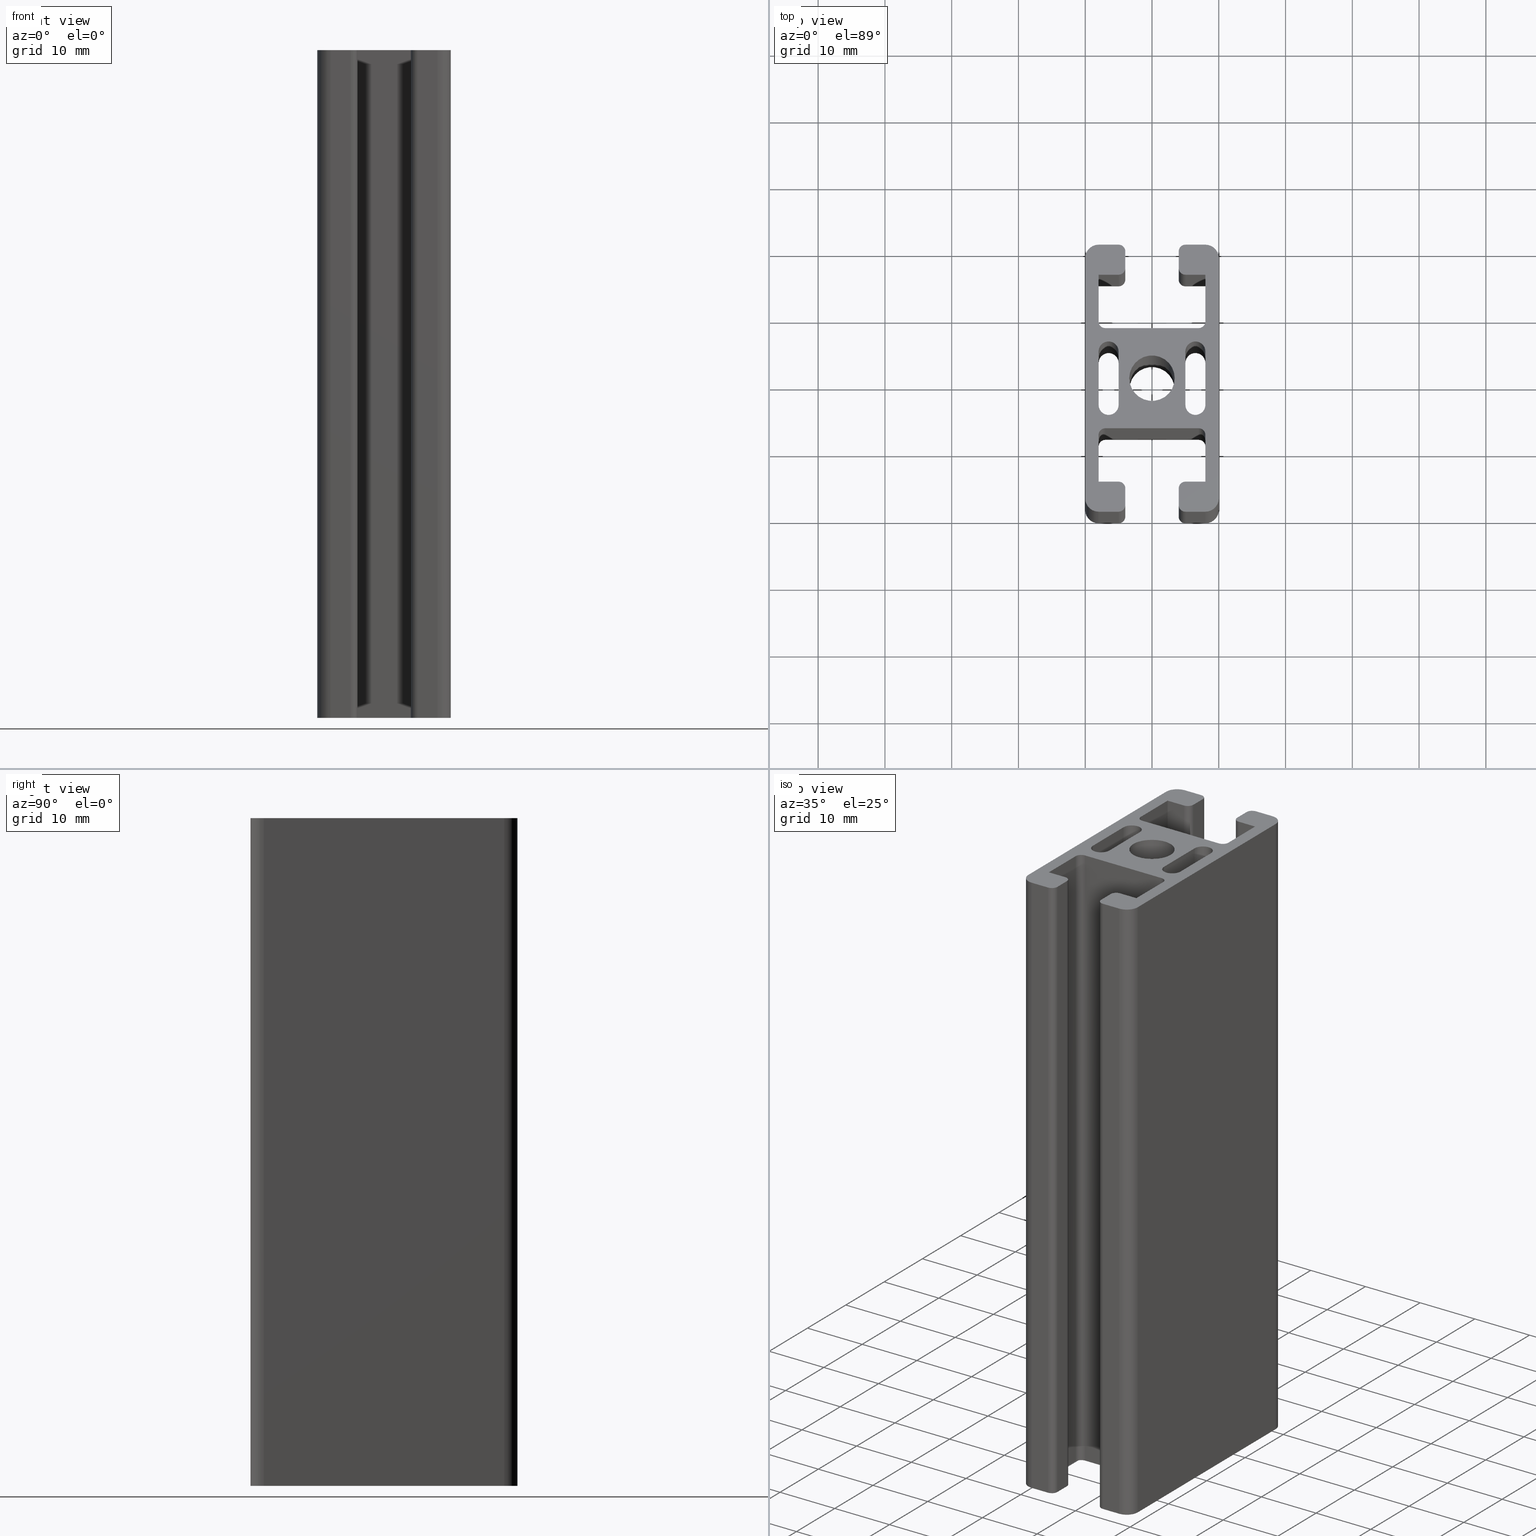
[diagram: canonical four-view strip — front | top / right | iso, engineering-drawing reading convention]
A machine part, canonical four-view strip (front | top / right | iso — engineering-drawing reading convention). The complete STEP part file that produces these views, byte-faithful:
ISO-10303-21;
HEADER;
/* Generated by software containing ST-Developer
 * from STEP Tools, Inc. (www.steptools.com) 
 */

FILE_DESCRIPTION(
/* description */ (''),
/* implementation_level */ '2;1');

FILE_NAME(
/* name */ 
'Q:\\Catalogo\\1_Profili Dierre\\Per Download Web\\Serie 40\\BPRDD0000
035.stp',
/* time_stamp */ '2017-07-12T11:37:06+02:00',
/* author */ ('fzagni'),
/* organization */ (''),
/* preprocessor_version */ 'ST-DEVELOPER v16.1',
/* originating_system */ 'Autodesk Inventor 2016',
/* authorisation */ '');

FILE_SCHEMA (('AUTOMOTIVE_DESIGN { 1 0 10303 214 3 1 1 }'));
ENDSEC;

DATA;
#10=MECHANICAL_DESIGN_GEOMETRIC_PRESENTATION_REPRESENTATION('',(#13),#1573);
#11=SHAPE_REPRESENTATION_RELATIONSHIP('SRR','None',#1582,#12);
#12=ADVANCED_BREP_SHAPE_REPRESENTATION('',(#14),#1572);
#13=STYLED_ITEM('',(#1591),#14);
#14=MANIFOLD_SOLID_BREP('Solido1',#935);
#15=LINE('',#1307,#107);
#16=LINE('',#1309,#108);
#17=LINE('',#1311,#109);
#18=LINE('',#1312,#110);
#19=LINE('',#1315,#111);
#20=LINE('',#1317,#112);
#21=LINE('',#1318,#113);
#22=LINE('',#1324,#114);
#23=LINE('',#1327,#115);
#24=LINE('',#1329,#116);
#25=LINE('',#1330,#117);
#26=LINE('',#1336,#118);
#27=LINE('',#1342,#119);
#28=LINE('',#1345,#120);
#29=LINE('',#1348,#121);
#30=LINE('',#1350,#122);
#31=LINE('',#1351,#123);
#32=LINE('',#1357,#124);
#33=LINE('',#1360,#125);
#34=LINE('',#1362,#126);
#35=LINE('',#1363,#127);
#36=LINE('',#1366,#128);
#37=LINE('',#1368,#129);
#38=LINE('',#1369,#130);
#39=LINE('',#1375,#131);
#40=LINE('',#1378,#132);
#41=LINE('',#1380,#133);
#42=LINE('',#1381,#134);
#43=LINE('',#1390,#135);
#44=LINE('',#1393,#136);
#45=LINE('',#1396,#137);
#46=LINE('',#1398,#138);
#47=LINE('',#1399,#139);
#48=LINE('',#1404,#140);
#49=LINE('',#1408,#141);
#50=LINE('',#1410,#142);
#51=LINE('',#1411,#143);
#52=LINE('',#1414,#144);
#53=LINE('',#1416,#145);
#54=LINE('',#1417,#146);
#55=LINE('',#1422,#147);
#56=LINE('',#1426,#148);
#57=LINE('',#1428,#149);
#58=LINE('',#1429,#150);
#59=LINE('',#1434,#151);
#60=LINE('',#1441,#152);
#61=LINE('',#1444,#153);
#62=LINE('',#1447,#154);
#63=LINE('',#1449,#155);
#64=LINE('',#1450,#156);
#65=LINE('',#1455,#157);
#66=LINE('',#1459,#158);
#67=LINE('',#1461,#159);
#68=LINE('',#1462,#160);
#69=LINE('',#1464,#161);
#70=LINE('',#1465,#162);
#71=LINE('',#1471,#163);
#72=LINE('',#1474,#164);
#73=LINE('',#1477,#165);
#74=LINE('',#1479,#166);
#75=LINE('',#1480,#167);
#76=LINE('',#1486,#168);
#77=LINE('',#1488,#169);
#78=LINE('',#1489,#170);
#79=LINE('',#1495,#171);
#80=LINE('',#1498,#172);
#81=LINE('',#1501,#173);
#82=LINE('',#1503,#174);
#83=LINE('',#1504,#175);
#84=LINE('',#1509,#176);
#85=LINE('',#1512,#177);
#86=LINE('',#1513,#178);
#87=LINE('',#1516,#179);
#88=LINE('',#1518,#180);
#89=LINE('',#1519,#181);
#90=LINE('',#1522,#182);
#91=LINE('',#1524,#183);
#92=LINE('',#1525,#184);
#93=LINE('',#1528,#185);
#94=LINE('',#1530,#186);
#95=LINE('',#1531,#187);
#96=LINE('',#1536,#188);
#97=LINE('',#1541,#189);
#98=LINE('',#1544,#190);
#99=LINE('',#1548,#191);
#100=LINE('',#1551,#192);
#101=LINE('',#1552,#193);
#102=LINE('',#1555,#194);
#103=LINE('',#1559,#195);
#104=LINE('',#1560,#196);
#105=LINE('',#1565,#197);
#106=LINE('',#1568,#198);
#107=VECTOR('',#1036,7.00000199595284);
#108=VECTOR('',#1037,100.);
#109=VECTOR('',#1038,7.00000199595284);
#110=VECTOR('',#1039,100.);
#111=VECTOR('',#1042,3.00000199595297);
#112=VECTOR('',#1043,3.00000199595297);
#113=VECTOR('',#1044,100.);
#114=VECTOR('',#1051,100.);
#115=VECTOR('',#1054,2.50000399190596);
#116=VECTOR('',#1055,2.50000399190596);
#117=VECTOR('',#1056,100.);
#118=VECTOR('',#1063,100.);
#119=VECTOR('',#1068,100.);
#120=VECTOR('',#1071,100.);
#121=VECTOR('',#1074,2.50000399190595);
#122=VECTOR('',#1075,2.50000399190595);
#123=VECTOR('',#1076,100.);
#124=VECTOR('',#1083,100.);
#125=VECTOR('',#1086,3.00000199595298);
#126=VECTOR('',#1087,3.00000199595298);
#127=VECTOR('',#1088,100.);
#128=VECTOR('',#1091,7.00000199595285);
#129=VECTOR('',#1092,7.00000199595285);
#130=VECTOR('',#1093,100.);
#131=VECTOR('',#1100,100.);
#132=VECTOR('',#1103,14.0000039919057);
#133=VECTOR('',#1104,14.0000039919057);
#134=VECTOR('',#1105,100.);
#135=VECTOR('',#1116,100.);
#136=VECTOR('',#1119,100.);
#137=VECTOR('',#1122,14.0000039919057);
#138=VECTOR('',#1123,100.);
#139=VECTOR('',#1124,14.0000039919057);
#140=VECTOR('',#1129,100.);
#141=VECTOR('',#1134,7.00000199595284);
#142=VECTOR('',#1135,100.);
#143=VECTOR('',#1136,7.00000199595284);
#144=VECTOR('',#1139,3.00000199595297);
#145=VECTOR('',#1140,100.);
#146=VECTOR('',#1141,3.00000199595297);
#147=VECTOR('',#1146,100.);
#148=VECTOR('',#1151,2.50000399190596);
#149=VECTOR('',#1152,100.);
#150=VECTOR('',#1153,2.50000399190596);
#151=VECTOR('',#1158,100.);
#152=VECTOR('',#1165,100.);
#153=VECTOR('',#1168,100.);
#154=VECTOR('',#1171,2.50000399190596);
#155=VECTOR('',#1172,100.);
#156=VECTOR('',#1173,2.50000399190596);
#157=VECTOR('',#1178,100.);
#158=VECTOR('',#1183,3.00000199595298);
#159=VECTOR('',#1184,100.);
#160=VECTOR('',#1185,3.00000199595298);
#161=VECTOR('',#1188,7.00000199595284);
#162=VECTOR('',#1189,7.00000199595284);
#163=VECTOR('',#1194,100.);
#164=VECTOR('',#1197,100.);
#165=VECTOR('',#1200,8.);
#166=VECTOR('',#1201,8.);
#167=VECTOR('',#1202,100.);
#168=VECTOR('',#1209,100.);
#169=VECTOR('',#1212,8.);
#170=VECTOR('',#1213,8.);
#171=VECTOR('',#1218,100.);
#172=VECTOR('',#1221,100.);
#173=VECTOR('',#1224,8.);
#174=VECTOR('',#1225,100.);
#175=VECTOR('',#1226,8.);
#176=VECTOR('',#1231,100.);
#177=VECTOR('',#1236,8.);
#178=VECTOR('',#1237,8.);
#179=VECTOR('',#1240,3.00000199595298);
#180=VECTOR('',#1241,100.);
#181=VECTOR('',#1242,3.00000199595298);
#182=VECTOR('',#1245,3.00000199595298);
#183=VECTOR('',#1246,100.);
#184=VECTOR('',#1247,3.00000199595298);
#185=VECTOR('',#1250,3.000001995953);
#186=VECTOR('',#1251,100.);
#187=VECTOR('',#1252,3.000001995953);
#188=VECTOR('',#1257,36.);
#189=VECTOR('',#1262,36.);
#190=VECTOR('',#1265,3.00000199595299);
#191=VECTOR('',#1270,100.);
#192=VECTOR('',#1273,100.);
#193=VECTOR('',#1274,3.00000199595299);
#194=VECTOR('',#1277,100.);
#195=VECTOR('',#1282,100.);
#196=VECTOR('',#1283,36.);
#197=VECTOR('',#1290,100.);
#198=VECTOR('',#1295,36.);
#199=PLANE('',#940);
#200=PLANE('',#941);
#201=PLANE('',#945);
#202=PLANE('',#952);
#203=PLANE('',#956);
#204=PLANE('',#957);
#205=PLANE('',#961);
#206=PLANE('',#968);
#207=PLANE('',#972);
#208=PLANE('',#973);
#209=PLANE('',#977);
#210=PLANE('',#984);
#211=PLANE('',#988);
#212=PLANE('',#989);
#213=PLANE('',#993);
#214=PLANE('',#997);
#215=PLANE('',#1001);
#216=PLANE('',#1005);
#217=PLANE('',#1006);
#218=PLANE('',#1007);
#219=PLANE('',#1008);
#220=PLANE('',#1009);
#221=PLANE('',#1016);
#222=PLANE('',#1019);
#223=PLANE('',#1024);
#224=PLANE('',#1025);
#225=FACE_BOUND('',#280,.T.);
#226=FACE_BOUND('',#319,.T.);
#227=FACE_BOUND('',#320,.T.);
#228=FACE_BOUND('',#321,.T.);
#229=FACE_BOUND('',#330,.T.);
#230=FACE_BOUND('',#331,.T.);
#231=FACE_BOUND('',#332,.T.);
#232=FACE_OUTER_BOUND('',#279,.T.);
#233=FACE_OUTER_BOUND('',#281,.T.);
#234=FACE_OUTER_BOUND('',#282,.T.);
#235=FACE_OUTER_BOUND('',#283,.T.);
#236=FACE_OUTER_BOUND('',#284,.T.);
#237=FACE_OUTER_BOUND('',#285,.T.);
#238=FACE_OUTER_BOUND('',#286,.T.);
#239=FACE_OUTER_BOUND('',#287,.T.);
#240=FACE_OUTER_BOUND('',#288,.T.);
#241=FACE_OUTER_BOUND('',#289,.T.);
#242=FACE_OUTER_BOUND('',#290,.T.);
#243=FACE_OUTER_BOUND('',#291,.T.);
#244=FACE_OUTER_BOUND('',#292,.T.);
#245=FACE_OUTER_BOUND('',#293,.T.);
#246=FACE_OUTER_BOUND('',#294,.T.);
#247=FACE_OUTER_BOUND('',#295,.T.);
#248=FACE_OUTER_BOUND('',#296,.T.);
#249=FACE_OUTER_BOUND('',#297,.T.);
#250=FACE_OUTER_BOUND('',#298,.T.);
#251=FACE_OUTER_BOUND('',#299,.T.);
#252=FACE_OUTER_BOUND('',#300,.T.);
#253=FACE_OUTER_BOUND('',#301,.T.);
#254=FACE_OUTER_BOUND('',#302,.T.);
#255=FACE_OUTER_BOUND('',#303,.T.);
#256=FACE_OUTER_BOUND('',#304,.T.);
#257=FACE_OUTER_BOUND('',#305,.T.);
#258=FACE_OUTER_BOUND('',#306,.T.);
#259=FACE_OUTER_BOUND('',#307,.T.);
#260=FACE_OUTER_BOUND('',#308,.T.);
#261=FACE_OUTER_BOUND('',#309,.T.);
#262=FACE_OUTER_BOUND('',#310,.T.);
#263=FACE_OUTER_BOUND('',#311,.T.);
#264=FACE_OUTER_BOUND('',#312,.T.);
#265=FACE_OUTER_BOUND('',#313,.T.);
#266=FACE_OUTER_BOUND('',#314,.T.);
#267=FACE_OUTER_BOUND('',#315,.T.);
#268=FACE_OUTER_BOUND('',#316,.T.);
#269=FACE_OUTER_BOUND('',#317,.T.);
#270=FACE_OUTER_BOUND('',#318,.T.);
#271=FACE_OUTER_BOUND('',#322,.T.);
#272=FACE_OUTER_BOUND('',#323,.T.);
#273=FACE_OUTER_BOUND('',#324,.T.);
#274=FACE_OUTER_BOUND('',#325,.T.);
#275=FACE_OUTER_BOUND('',#326,.T.);
#276=FACE_OUTER_BOUND('',#327,.T.);
#277=FACE_OUTER_BOUND('',#328,.T.);
#278=FACE_OUTER_BOUND('',#329,.T.);
#279=EDGE_LOOP('',(#599));
#280=EDGE_LOOP('',(#600));
#281=EDGE_LOOP('',(#601,#602,#603,#604));
#282=EDGE_LOOP('',(#605,#606,#607,#608));
#283=EDGE_LOOP('',(#609,#610,#611,#612));
#284=EDGE_LOOP('',(#613,#614,#615,#616));
#285=EDGE_LOOP('',(#617,#618,#619,#620));
#286=EDGE_LOOP('',(#621,#622,#623,#624));
#287=EDGE_LOOP('',(#625,#626,#627,#628));
#288=EDGE_LOOP('',(#629,#630,#631,#632));
#289=EDGE_LOOP('',(#633,#634,#635,#636));
#290=EDGE_LOOP('',(#637,#638,#639,#640));
#291=EDGE_LOOP('',(#641,#642,#643,#644));
#292=EDGE_LOOP('',(#645,#646,#647,#648));
#293=EDGE_LOOP('',(#649,#650,#651,#652));
#294=EDGE_LOOP('',(#653,#654,#655,#656));
#295=EDGE_LOOP('',(#657,#658,#659,#660));
#296=EDGE_LOOP('',(#661,#662,#663,#664));
#297=EDGE_LOOP('',(#665,#666,#667,#668));
#298=EDGE_LOOP('',(#669,#670,#671,#672));
#299=EDGE_LOOP('',(#673,#674,#675,#676));
#300=EDGE_LOOP('',(#677,#678,#679,#680));
#301=EDGE_LOOP('',(#681,#682,#683,#684));
#302=EDGE_LOOP('',(#685,#686,#687,#688));
#303=EDGE_LOOP('',(#689,#690,#691,#692));
#304=EDGE_LOOP('',(#693,#694,#695,#696));
#305=EDGE_LOOP('',(#697,#698,#699,#700));
#306=EDGE_LOOP('',(#701,#702,#703,#704));
#307=EDGE_LOOP('',(#705,#706,#707,#708));
#308=EDGE_LOOP('',(#709,#710,#711,#712));
#309=EDGE_LOOP('',(#713,#714,#715,#716));
#310=EDGE_LOOP('',(#717,#718,#719,#720));
#311=EDGE_LOOP('',(#721,#722,#723,#724));
#312=EDGE_LOOP('',(#725,#726,#727,#728));
#313=EDGE_LOOP('',(#729,#730,#731,#732));
#314=EDGE_LOOP('',(#733,#734,#735,#736));
#315=EDGE_LOOP('',(#737,#738,#739,#740));
#316=EDGE_LOOP('',(#741,#742,#743,#744));
#317=EDGE_LOOP('',(#745,#746,#747,#748));
#318=EDGE_LOOP('',(#749,#750,#751,#752,#753,#754,#755,#756,#757,#758,#759,
#760,#761,#762,#763,#764,#765,#766,#767,#768,#769,#770,#771,#772,#773,#774,
#775,#776,#777,#778,#779,#780,#781,#782,#783,#784));
#319=EDGE_LOOP('',(#785,#786,#787,#788));
#320=EDGE_LOOP('',(#789,#790,#791,#792));
#321=EDGE_LOOP('',(#793));
#322=EDGE_LOOP('',(#794,#795,#796,#797));
#323=EDGE_LOOP('',(#798,#799,#800,#801));
#324=EDGE_LOOP('',(#802,#803,#804,#805));
#325=EDGE_LOOP('',(#806,#807,#808,#809));
#326=EDGE_LOOP('',(#810,#811,#812,#813));
#327=EDGE_LOOP('',(#814,#815,#816,#817));
#328=EDGE_LOOP('',(#818,#819,#820,#821));
#329=EDGE_LOOP('',(#822,#823,#824,#825,#826,#827,#828,#829,#830,#831,#832,
#833,#834,#835,#836,#837,#838,#839,#840,#841,#842,#843,#844,#845,#846,#847,
#848,#849,#850,#851,#852,#853,#854,#855,#856,#857));
#330=EDGE_LOOP('',(#858));
#331=EDGE_LOOP('',(#859,#860,#861,#862));
#332=EDGE_LOOP('',(#863,#864,#865,#866));
#333=CIRCLE('',#938,3.4);
#334=CIRCLE('',#939,3.4);
#335=CIRCLE('',#943,0.999998004047022);
#336=CIRCLE('',#944,0.999998004047022);
#337=CIRCLE('',#947,0.99999800404702);
#338=CIRCLE('',#948,0.99999800404702);
#339=CIRCLE('',#950,0.999998004047022);
#340=CIRCLE('',#951,0.999998004047022);
#341=CIRCLE('',#954,0.999998004047022);
#342=CIRCLE('',#955,0.999998004047022);
#343=CIRCLE('',#959,0.999998004047153);
#344=CIRCLE('',#960,0.999998004047153);
#345=CIRCLE('',#963,0.99999800404715);
#346=CIRCLE('',#964,0.99999800404715);
#347=CIRCLE('',#966,0.999998004047153);
#348=CIRCLE('',#967,0.999998004047153);
#349=CIRCLE('',#970,0.999998004047152);
#350=CIRCLE('',#971,0.999998004047152);
#351=CIRCLE('',#975,0.999998004047026);
#352=CIRCLE('',#976,0.999998004047026);
#353=CIRCLE('',#979,0.999998004047015);
#354=CIRCLE('',#980,0.999998004047015);
#355=CIRCLE('',#982,0.999998004047022);
#356=CIRCLE('',#983,0.999998004047022);
#357=CIRCLE('',#986,0.999998004047022);
#358=CIRCLE('',#987,0.999998004047022);
#359=CIRCLE('',#991,1.5);
#360=CIRCLE('',#992,1.5);
#361=CIRCLE('',#995,1.5);
#362=CIRCLE('',#996,1.5);
#363=CIRCLE('',#999,1.5);
#364=CIRCLE('',#1000,1.5);
#365=CIRCLE('',#1003,1.5);
#366=CIRCLE('',#1004,1.5);
#367=CIRCLE('',#1010,2.);
#368=CIRCLE('',#1011,2.);
#369=CIRCLE('',#1012,2.);
#370=CIRCLE('',#1013,2.);
#371=CIRCLE('',#1015,2.);
#372=CIRCLE('',#1018,2.);
#373=CIRCLE('',#1021,2.);
#374=CIRCLE('',#1023,2.);
#375=VERTEX_POINT('',#1300);
#376=VERTEX_POINT('',#1302);
#377=VERTEX_POINT('',#1305);
#378=VERTEX_POINT('',#1306);
#379=VERTEX_POINT('',#1308);
#380=VERTEX_POINT('',#1310);
#381=VERTEX_POINT('',#1314);
#382=VERTEX_POINT('',#1316);
#383=VERTEX_POINT('',#1320);
#384=VERTEX_POINT('',#1322);
#385=VERTEX_POINT('',#1326);
#386=VERTEX_POINT('',#1328);
#387=VERTEX_POINT('',#1332);
#388=VERTEX_POINT('',#1334);
#389=VERTEX_POINT('',#1338);
#390=VERTEX_POINT('',#1339);
#391=VERTEX_POINT('',#1341);
#392=VERTEX_POINT('',#1343);
#393=VERTEX_POINT('',#1347);
#394=VERTEX_POINT('',#1349);
#395=VERTEX_POINT('',#1353);
#396=VERTEX_POINT('',#1355);
#397=VERTEX_POINT('',#1359);
#398=VERTEX_POINT('',#1361);
#399=VERTEX_POINT('',#1365);
#400=VERTEX_POINT('',#1367);
#401=VERTEX_POINT('',#1371);
#402=VERTEX_POINT('',#1373);
#403=VERTEX_POINT('',#1377);
#404=VERTEX_POINT('',#1379);
#405=VERTEX_POINT('',#1386);
#406=VERTEX_POINT('',#1387);
#407=VERTEX_POINT('',#1389);
#408=VERTEX_POINT('',#1391);
#409=VERTEX_POINT('',#1395);
#410=VERTEX_POINT('',#1397);
#411=VERTEX_POINT('',#1401);
#412=VERTEX_POINT('',#1403);
#413=VERTEX_POINT('',#1407);
#414=VERTEX_POINT('',#1409);
#415=VERTEX_POINT('',#1413);
#416=VERTEX_POINT('',#1415);
#417=VERTEX_POINT('',#1419);
#418=VERTEX_POINT('',#1421);
#419=VERTEX_POINT('',#1425);
#420=VERTEX_POINT('',#1427);
#421=VERTEX_POINT('',#1431);
#422=VERTEX_POINT('',#1433);
#423=VERTEX_POINT('',#1437);
#424=VERTEX_POINT('',#1438);
#425=VERTEX_POINT('',#1440);
#426=VERTEX_POINT('',#1442);
#427=VERTEX_POINT('',#1446);
#428=VERTEX_POINT('',#1448);
#429=VERTEX_POINT('',#1452);
#430=VERTEX_POINT('',#1454);
#431=VERTEX_POINT('',#1458);
#432=VERTEX_POINT('',#1460);
#433=VERTEX_POINT('',#1467);
#434=VERTEX_POINT('',#1468);
#435=VERTEX_POINT('',#1470);
#436=VERTEX_POINT('',#1472);
#437=VERTEX_POINT('',#1476);
#438=VERTEX_POINT('',#1478);
#439=VERTEX_POINT('',#1482);
#440=VERTEX_POINT('',#1484);
#441=VERTEX_POINT('',#1491);
#442=VERTEX_POINT('',#1492);
#443=VERTEX_POINT('',#1494);
#444=VERTEX_POINT('',#1496);
#445=VERTEX_POINT('',#1500);
#446=VERTEX_POINT('',#1502);
#447=VERTEX_POINT('',#1506);
#448=VERTEX_POINT('',#1508);
#449=VERTEX_POINT('',#1515);
#450=VERTEX_POINT('',#1517);
#451=VERTEX_POINT('',#1521);
#452=VERTEX_POINT('',#1523);
#453=VERTEX_POINT('',#1527);
#454=VERTEX_POINT('',#1529);
#455=VERTEX_POINT('',#1533);
#456=VERTEX_POINT('',#1535);
#457=VERTEX_POINT('',#1538);
#458=VERTEX_POINT('',#1540);
#459=VERTEX_POINT('',#1542);
#460=VERTEX_POINT('',#1546);
#461=VERTEX_POINT('',#1550);
#462=VERTEX_POINT('',#1554);
#463=VERTEX_POINT('',#1558);
#464=VERTEX_POINT('',#1564);
#465=EDGE_CURVE('',#375,#375,#333,.T.);
#466=EDGE_CURVE('',#376,#376,#334,.T.);
#467=EDGE_CURVE('',#377,#378,#15,.T.);
#468=EDGE_CURVE('',#379,#377,#16,.T.);
#469=EDGE_CURVE('',#380,#379,#17,.T.);
#470=EDGE_CURVE('',#380,#378,#18,.T.);
#471=EDGE_CURVE('',#378,#381,#19,.T.);
#472=EDGE_CURVE('',#382,#380,#20,.T.);
#473=EDGE_CURVE('',#382,#381,#21,.T.);
#474=EDGE_CURVE('',#381,#383,#335,.T.);
#475=EDGE_CURVE('',#384,#382,#336,.T.);
#476=EDGE_CURVE('',#384,#383,#22,.T.);
#477=EDGE_CURVE('',#383,#385,#23,.T.);
#478=EDGE_CURVE('',#386,#384,#24,.T.);
#479=EDGE_CURVE('',#386,#385,#25,.T.);
#480=EDGE_CURVE('',#385,#387,#337,.T.);
#481=EDGE_CURVE('',#388,#386,#338,.T.);
#482=EDGE_CURVE('',#387,#388,#26,.T.);
#483=EDGE_CURVE('',#389,#390,#339,.T.);
#484=EDGE_CURVE('',#389,#391,#27,.T.);
#485=EDGE_CURVE('',#392,#391,#340,.T.);
#486=EDGE_CURVE('',#392,#390,#28,.T.);
#487=EDGE_CURVE('',#390,#393,#29,.T.);
#488=EDGE_CURVE('',#394,#392,#30,.T.);
#489=EDGE_CURVE('',#394,#393,#31,.T.);
#490=EDGE_CURVE('',#393,#395,#341,.T.);
#491=EDGE_CURVE('',#396,#394,#342,.T.);
#492=EDGE_CURVE('',#396,#395,#32,.T.);
#493=EDGE_CURVE('',#395,#397,#33,.T.);
#494=EDGE_CURVE('',#398,#396,#34,.T.);
#495=EDGE_CURVE('',#398,#397,#35,.T.);
#496=EDGE_CURVE('',#397,#399,#36,.T.);
#497=EDGE_CURVE('',#400,#398,#37,.T.);
#498=EDGE_CURVE('',#400,#399,#38,.T.);
#499=EDGE_CURVE('',#399,#401,#343,.T.);
#500=EDGE_CURVE('',#402,#400,#344,.T.);
#501=EDGE_CURVE('',#402,#401,#39,.T.);
#502=EDGE_CURVE('',#401,#403,#40,.T.);
#503=EDGE_CURVE('',#404,#402,#41,.T.);
#504=EDGE_CURVE('',#404,#403,#42,.T.);
#505=EDGE_CURVE('',#403,#377,#345,.T.);
#506=EDGE_CURVE('',#379,#404,#346,.T.);
#507=EDGE_CURVE('',#405,#406,#347,.T.);
#508=EDGE_CURVE('',#407,#405,#43,.T.);
#509=EDGE_CURVE('',#408,#407,#348,.T.);
#510=EDGE_CURVE('',#408,#406,#44,.T.);
#511=EDGE_CURVE('',#409,#405,#45,.T.);
#512=EDGE_CURVE('',#410,#409,#46,.T.);
#513=EDGE_CURVE('',#407,#410,#47,.T.);
#514=EDGE_CURVE('',#411,#409,#349,.T.);
#515=EDGE_CURVE('',#412,#411,#48,.T.);
#516=EDGE_CURVE('',#410,#412,#350,.T.);
#517=EDGE_CURVE('',#413,#411,#49,.T.);
#518=EDGE_CURVE('',#414,#413,#50,.T.);
#519=EDGE_CURVE('',#412,#414,#51,.T.);
#520=EDGE_CURVE('',#415,#413,#52,.T.);
#521=EDGE_CURVE('',#416,#415,#53,.T.);
#522=EDGE_CURVE('',#414,#416,#54,.T.);
#523=EDGE_CURVE('',#417,#415,#351,.T.);
#524=EDGE_CURVE('',#418,#417,#55,.T.);
#525=EDGE_CURVE('',#416,#418,#352,.T.);
#526=EDGE_CURVE('',#419,#417,#56,.T.);
#527=EDGE_CURVE('',#420,#419,#57,.T.);
#528=EDGE_CURVE('',#418,#420,#58,.T.);
#529=EDGE_CURVE('',#421,#419,#353,.T.);
#530=EDGE_CURVE('',#421,#422,#59,.T.);
#531=EDGE_CURVE('',#420,#422,#354,.T.);
#532=EDGE_CURVE('',#423,#424,#355,.T.);
#533=EDGE_CURVE('',#425,#423,#60,.T.);
#534=EDGE_CURVE('',#426,#425,#356,.T.);
#535=EDGE_CURVE('',#424,#426,#61,.T.);
#536=EDGE_CURVE('',#427,#423,#62,.T.);
#537=EDGE_CURVE('',#428,#427,#63,.T.);
#538=EDGE_CURVE('',#425,#428,#64,.T.);
#539=EDGE_CURVE('',#429,#427,#357,.T.);
#540=EDGE_CURVE('',#430,#429,#65,.T.);
#541=EDGE_CURVE('',#428,#430,#358,.T.);
#542=EDGE_CURVE('',#431,#429,#66,.T.);
#543=EDGE_CURVE('',#432,#431,#67,.T.);
#544=EDGE_CURVE('',#430,#432,#68,.T.);
#545=EDGE_CURVE('',#406,#431,#69,.T.);
#546=EDGE_CURVE('',#432,#408,#70,.T.);
#547=EDGE_CURVE('',#433,#434,#359,.T.);
#548=EDGE_CURVE('',#435,#433,#71,.T.);
#549=EDGE_CURVE('',#436,#435,#360,.T.);
#550=EDGE_CURVE('',#436,#434,#72,.T.);
#551=EDGE_CURVE('',#434,#437,#73,.T.);
#552=EDGE_CURVE('',#438,#436,#74,.T.);
#553=EDGE_CURVE('',#438,#437,#75,.T.);
#554=EDGE_CURVE('',#437,#439,#361,.T.);
#555=EDGE_CURVE('',#440,#438,#362,.T.);
#556=EDGE_CURVE('',#440,#439,#76,.T.);
#557=EDGE_CURVE('',#439,#433,#77,.T.);
#558=EDGE_CURVE('',#435,#440,#78,.T.);
#559=EDGE_CURVE('',#441,#442,#363,.T.);
#560=EDGE_CURVE('',#443,#441,#79,.T.);
#561=EDGE_CURVE('',#444,#443,#364,.T.);
#562=EDGE_CURVE('',#444,#442,#80,.T.);
#563=EDGE_CURVE('',#445,#441,#81,.T.);
#564=EDGE_CURVE('',#446,#445,#82,.T.);
#565=EDGE_CURVE('',#443,#446,#83,.T.);
#566=EDGE_CURVE('',#447,#445,#365,.T.);
#567=EDGE_CURVE('',#448,#447,#84,.T.);
#568=EDGE_CURVE('',#446,#448,#366,.T.);
#569=EDGE_CURVE('',#442,#447,#85,.T.);
#570=EDGE_CURVE('',#448,#444,#86,.T.);
#571=EDGE_CURVE('',#449,#388,#87,.T.);
#572=EDGE_CURVE('',#449,#450,#88,.T.);
#573=EDGE_CURVE('',#450,#387,#89,.T.);
#574=EDGE_CURVE('',#451,#426,#90,.T.);
#575=EDGE_CURVE('',#451,#452,#91,.T.);
#576=EDGE_CURVE('',#452,#424,#92,.T.);
#577=EDGE_CURVE('',#421,#453,#93,.T.);
#578=EDGE_CURVE('',#454,#453,#94,.T.);
#579=EDGE_CURVE('',#422,#454,#95,.T.);
#580=EDGE_CURVE('',#455,#450,#367,.T.);
#581=EDGE_CURVE('',#456,#455,#96,.T.);
#582=EDGE_CURVE('',#453,#456,#368,.T.);
#583=EDGE_CURVE('',#457,#452,#369,.T.);
#584=EDGE_CURVE('',#458,#457,#97,.T.);
#585=EDGE_CURVE('',#459,#458,#370,.T.);
#586=EDGE_CURVE('',#389,#459,#98,.T.);
#587=EDGE_CURVE('',#460,#449,#371,.T.);
#588=EDGE_CURVE('',#460,#455,#99,.T.);
#589=EDGE_CURVE('',#461,#459,#100,.T.);
#590=EDGE_CURVE('',#391,#461,#101,.T.);
#591=EDGE_CURVE('',#462,#458,#102,.T.);
#592=EDGE_CURVE('',#461,#462,#372,.T.);
#593=EDGE_CURVE('',#463,#457,#103,.T.);
#594=EDGE_CURVE('',#462,#463,#104,.T.);
#595=EDGE_CURVE('',#463,#451,#373,.T.);
#596=EDGE_CURVE('',#464,#456,#105,.T.);
#597=EDGE_CURVE('',#454,#464,#374,.T.);
#598=EDGE_CURVE('',#464,#460,#106,.T.);
#599=ORIENTED_EDGE('',*,*,#465,.F.);
#600=ORIENTED_EDGE('',*,*,#466,.F.);
#601=ORIENTED_EDGE('',*,*,#467,.F.);
#602=ORIENTED_EDGE('',*,*,#468,.F.);
#603=ORIENTED_EDGE('',*,*,#469,.F.);
#604=ORIENTED_EDGE('',*,*,#470,.T.);
#605=ORIENTED_EDGE('',*,*,#471,.F.);
#606=ORIENTED_EDGE('',*,*,#470,.F.);
#607=ORIENTED_EDGE('',*,*,#472,.F.);
#608=ORIENTED_EDGE('',*,*,#473,.T.);
#609=ORIENTED_EDGE('',*,*,#474,.F.);
#610=ORIENTED_EDGE('',*,*,#473,.F.);
#611=ORIENTED_EDGE('',*,*,#475,.F.);
#612=ORIENTED_EDGE('',*,*,#476,.T.);
#613=ORIENTED_EDGE('',*,*,#477,.F.);
#614=ORIENTED_EDGE('',*,*,#476,.F.);
#615=ORIENTED_EDGE('',*,*,#478,.F.);
#616=ORIENTED_EDGE('',*,*,#479,.T.);
#617=ORIENTED_EDGE('',*,*,#480,.F.);
#618=ORIENTED_EDGE('',*,*,#479,.F.);
#619=ORIENTED_EDGE('',*,*,#481,.F.);
#620=ORIENTED_EDGE('',*,*,#482,.F.);
#621=ORIENTED_EDGE('',*,*,#483,.F.);
#622=ORIENTED_EDGE('',*,*,#484,.T.);
#623=ORIENTED_EDGE('',*,*,#485,.F.);
#624=ORIENTED_EDGE('',*,*,#486,.T.);
#625=ORIENTED_EDGE('',*,*,#487,.F.);
#626=ORIENTED_EDGE('',*,*,#486,.F.);
#627=ORIENTED_EDGE('',*,*,#488,.F.);
#628=ORIENTED_EDGE('',*,*,#489,.T.);
#629=ORIENTED_EDGE('',*,*,#490,.F.);
#630=ORIENTED_EDGE('',*,*,#489,.F.);
#631=ORIENTED_EDGE('',*,*,#491,.F.);
#632=ORIENTED_EDGE('',*,*,#492,.T.);
#633=ORIENTED_EDGE('',*,*,#493,.F.);
#634=ORIENTED_EDGE('',*,*,#492,.F.);
#635=ORIENTED_EDGE('',*,*,#494,.F.);
#636=ORIENTED_EDGE('',*,*,#495,.T.);
#637=ORIENTED_EDGE('',*,*,#496,.F.);
#638=ORIENTED_EDGE('',*,*,#495,.F.);
#639=ORIENTED_EDGE('',*,*,#497,.F.);
#640=ORIENTED_EDGE('',*,*,#498,.T.);
#641=ORIENTED_EDGE('',*,*,#499,.F.);
#642=ORIENTED_EDGE('',*,*,#498,.F.);
#643=ORIENTED_EDGE('',*,*,#500,.F.);
#644=ORIENTED_EDGE('',*,*,#501,.T.);
#645=ORIENTED_EDGE('',*,*,#502,.F.);
#646=ORIENTED_EDGE('',*,*,#501,.F.);
#647=ORIENTED_EDGE('',*,*,#503,.F.);
#648=ORIENTED_EDGE('',*,*,#504,.T.);
#649=ORIENTED_EDGE('',*,*,#505,.F.);
#650=ORIENTED_EDGE('',*,*,#504,.F.);
#651=ORIENTED_EDGE('',*,*,#506,.F.);
#652=ORIENTED_EDGE('',*,*,#468,.T.);
#653=ORIENTED_EDGE('',*,*,#507,.F.);
#654=ORIENTED_EDGE('',*,*,#508,.F.);
#655=ORIENTED_EDGE('',*,*,#509,.F.);
#656=ORIENTED_EDGE('',*,*,#510,.T.);
#657=ORIENTED_EDGE('',*,*,#511,.F.);
#658=ORIENTED_EDGE('',*,*,#512,.F.);
#659=ORIENTED_EDGE('',*,*,#513,.F.);
#660=ORIENTED_EDGE('',*,*,#508,.T.);
#661=ORIENTED_EDGE('',*,*,#514,.F.);
#662=ORIENTED_EDGE('',*,*,#515,.F.);
#663=ORIENTED_EDGE('',*,*,#516,.F.);
#664=ORIENTED_EDGE('',*,*,#512,.T.);
#665=ORIENTED_EDGE('',*,*,#517,.F.);
#666=ORIENTED_EDGE('',*,*,#518,.F.);
#667=ORIENTED_EDGE('',*,*,#519,.F.);
#668=ORIENTED_EDGE('',*,*,#515,.T.);
#669=ORIENTED_EDGE('',*,*,#520,.F.);
#670=ORIENTED_EDGE('',*,*,#521,.F.);
#671=ORIENTED_EDGE('',*,*,#522,.F.);
#672=ORIENTED_EDGE('',*,*,#518,.T.);
#673=ORIENTED_EDGE('',*,*,#523,.F.);
#674=ORIENTED_EDGE('',*,*,#524,.F.);
#675=ORIENTED_EDGE('',*,*,#525,.F.);
#676=ORIENTED_EDGE('',*,*,#521,.T.);
#677=ORIENTED_EDGE('',*,*,#526,.F.);
#678=ORIENTED_EDGE('',*,*,#527,.F.);
#679=ORIENTED_EDGE('',*,*,#528,.F.);
#680=ORIENTED_EDGE('',*,*,#524,.T.);
#681=ORIENTED_EDGE('',*,*,#529,.F.);
#682=ORIENTED_EDGE('',*,*,#530,.T.);
#683=ORIENTED_EDGE('',*,*,#531,.F.);
#684=ORIENTED_EDGE('',*,*,#527,.T.);
#685=ORIENTED_EDGE('',*,*,#532,.F.);
#686=ORIENTED_EDGE('',*,*,#533,.F.);
#687=ORIENTED_EDGE('',*,*,#534,.F.);
#688=ORIENTED_EDGE('',*,*,#535,.F.);
#689=ORIENTED_EDGE('',*,*,#536,.F.);
#690=ORIENTED_EDGE('',*,*,#537,.F.);
#691=ORIENTED_EDGE('',*,*,#538,.F.);
#692=ORIENTED_EDGE('',*,*,#533,.T.);
#693=ORIENTED_EDGE('',*,*,#539,.F.);
#694=ORIENTED_EDGE('',*,*,#540,.F.);
#695=ORIENTED_EDGE('',*,*,#541,.F.);
#696=ORIENTED_EDGE('',*,*,#537,.T.);
#697=ORIENTED_EDGE('',*,*,#542,.F.);
#698=ORIENTED_EDGE('',*,*,#543,.F.);
#699=ORIENTED_EDGE('',*,*,#544,.F.);
#700=ORIENTED_EDGE('',*,*,#540,.T.);
#701=ORIENTED_EDGE('',*,*,#545,.F.);
#702=ORIENTED_EDGE('',*,*,#510,.F.);
#703=ORIENTED_EDGE('',*,*,#546,.F.);
#704=ORIENTED_EDGE('',*,*,#543,.T.);
#705=ORIENTED_EDGE('',*,*,#547,.F.);
#706=ORIENTED_EDGE('',*,*,#548,.F.);
#707=ORIENTED_EDGE('',*,*,#549,.F.);
#708=ORIENTED_EDGE('',*,*,#550,.T.);
#709=ORIENTED_EDGE('',*,*,#551,.F.);
#710=ORIENTED_EDGE('',*,*,#550,.F.);
#711=ORIENTED_EDGE('',*,*,#552,.F.);
#712=ORIENTED_EDGE('',*,*,#553,.T.);
#713=ORIENTED_EDGE('',*,*,#554,.F.);
#714=ORIENTED_EDGE('',*,*,#553,.F.);
#715=ORIENTED_EDGE('',*,*,#555,.F.);
#716=ORIENTED_EDGE('',*,*,#556,.T.);
#717=ORIENTED_EDGE('',*,*,#557,.F.);
#718=ORIENTED_EDGE('',*,*,#556,.F.);
#719=ORIENTED_EDGE('',*,*,#558,.F.);
#720=ORIENTED_EDGE('',*,*,#548,.T.);
#721=ORIENTED_EDGE('',*,*,#559,.F.);
#722=ORIENTED_EDGE('',*,*,#560,.F.);
#723=ORIENTED_EDGE('',*,*,#561,.F.);
#724=ORIENTED_EDGE('',*,*,#562,.T.);
#725=ORIENTED_EDGE('',*,*,#563,.F.);
#726=ORIENTED_EDGE('',*,*,#564,.F.);
#727=ORIENTED_EDGE('',*,*,#565,.F.);
#728=ORIENTED_EDGE('',*,*,#560,.T.);
#729=ORIENTED_EDGE('',*,*,#566,.F.);
#730=ORIENTED_EDGE('',*,*,#567,.F.);
#731=ORIENTED_EDGE('',*,*,#568,.F.);
#732=ORIENTED_EDGE('',*,*,#564,.T.);
#733=ORIENTED_EDGE('',*,*,#569,.F.);
#734=ORIENTED_EDGE('',*,*,#562,.F.);
#735=ORIENTED_EDGE('',*,*,#570,.F.);
#736=ORIENTED_EDGE('',*,*,#567,.T.);
#737=ORIENTED_EDGE('',*,*,#482,.T.);
#738=ORIENTED_EDGE('',*,*,#571,.F.);
#739=ORIENTED_EDGE('',*,*,#572,.T.);
#740=ORIENTED_EDGE('',*,*,#573,.T.);
#741=ORIENTED_EDGE('',*,*,#535,.T.);
#742=ORIENTED_EDGE('',*,*,#574,.F.);
#743=ORIENTED_EDGE('',*,*,#575,.T.);
#744=ORIENTED_EDGE('',*,*,#576,.T.);
#745=ORIENTED_EDGE('',*,*,#530,.F.);
#746=ORIENTED_EDGE('',*,*,#577,.T.);
#747=ORIENTED_EDGE('',*,*,#578,.F.);
#748=ORIENTED_EDGE('',*,*,#579,.F.);
#749=ORIENTED_EDGE('',*,*,#483,.T.);
#750=ORIENTED_EDGE('',*,*,#487,.T.);
#751=ORIENTED_EDGE('',*,*,#490,.T.);
#752=ORIENTED_EDGE('',*,*,#493,.T.);
#753=ORIENTED_EDGE('',*,*,#496,.T.);
#754=ORIENTED_EDGE('',*,*,#499,.T.);
#755=ORIENTED_EDGE('',*,*,#502,.T.);
#756=ORIENTED_EDGE('',*,*,#505,.T.);
#757=ORIENTED_EDGE('',*,*,#467,.T.);
#758=ORIENTED_EDGE('',*,*,#471,.T.);
#759=ORIENTED_EDGE('',*,*,#474,.T.);
#760=ORIENTED_EDGE('',*,*,#477,.T.);
#761=ORIENTED_EDGE('',*,*,#480,.T.);
#762=ORIENTED_EDGE('',*,*,#573,.F.);
#763=ORIENTED_EDGE('',*,*,#580,.F.);
#764=ORIENTED_EDGE('',*,*,#581,.F.);
#765=ORIENTED_EDGE('',*,*,#582,.F.);
#766=ORIENTED_EDGE('',*,*,#577,.F.);
#767=ORIENTED_EDGE('',*,*,#529,.T.);
#768=ORIENTED_EDGE('',*,*,#526,.T.);
#769=ORIENTED_EDGE('',*,*,#523,.T.);
#770=ORIENTED_EDGE('',*,*,#520,.T.);
#771=ORIENTED_EDGE('',*,*,#517,.T.);
#772=ORIENTED_EDGE('',*,*,#514,.T.);
#773=ORIENTED_EDGE('',*,*,#511,.T.);
#774=ORIENTED_EDGE('',*,*,#507,.T.);
#775=ORIENTED_EDGE('',*,*,#545,.T.);
#776=ORIENTED_EDGE('',*,*,#542,.T.);
#777=ORIENTED_EDGE('',*,*,#539,.T.);
#778=ORIENTED_EDGE('',*,*,#536,.T.);
#779=ORIENTED_EDGE('',*,*,#532,.T.);
#780=ORIENTED_EDGE('',*,*,#576,.F.);
#781=ORIENTED_EDGE('',*,*,#583,.F.);
#782=ORIENTED_EDGE('',*,*,#584,.F.);
#783=ORIENTED_EDGE('',*,*,#585,.F.);
#784=ORIENTED_EDGE('',*,*,#586,.F.);
#785=ORIENTED_EDGE('',*,*,#559,.T.);
#786=ORIENTED_EDGE('',*,*,#569,.T.);
#787=ORIENTED_EDGE('',*,*,#566,.T.);
#788=ORIENTED_EDGE('',*,*,#563,.T.);
#789=ORIENTED_EDGE('',*,*,#547,.T.);
#790=ORIENTED_EDGE('',*,*,#551,.T.);
#791=ORIENTED_EDGE('',*,*,#554,.T.);
#792=ORIENTED_EDGE('',*,*,#557,.T.);
#793=ORIENTED_EDGE('',*,*,#465,.T.);
#794=ORIENTED_EDGE('',*,*,#580,.T.);
#795=ORIENTED_EDGE('',*,*,#572,.F.);
#796=ORIENTED_EDGE('',*,*,#587,.F.);
#797=ORIENTED_EDGE('',*,*,#588,.T.);
#798=ORIENTED_EDGE('',*,*,#484,.F.);
#799=ORIENTED_EDGE('',*,*,#586,.T.);
#800=ORIENTED_EDGE('',*,*,#589,.F.);
#801=ORIENTED_EDGE('',*,*,#590,.F.);
#802=ORIENTED_EDGE('',*,*,#585,.T.);
#803=ORIENTED_EDGE('',*,*,#591,.F.);
#804=ORIENTED_EDGE('',*,*,#592,.F.);
#805=ORIENTED_EDGE('',*,*,#589,.T.);
#806=ORIENTED_EDGE('',*,*,#584,.T.);
#807=ORIENTED_EDGE('',*,*,#593,.F.);
#808=ORIENTED_EDGE('',*,*,#594,.F.);
#809=ORIENTED_EDGE('',*,*,#591,.T.);
#810=ORIENTED_EDGE('',*,*,#583,.T.);
#811=ORIENTED_EDGE('',*,*,#575,.F.);
#812=ORIENTED_EDGE('',*,*,#595,.F.);
#813=ORIENTED_EDGE('',*,*,#593,.T.);
#814=ORIENTED_EDGE('',*,*,#582,.T.);
#815=ORIENTED_EDGE('',*,*,#596,.F.);
#816=ORIENTED_EDGE('',*,*,#597,.F.);
#817=ORIENTED_EDGE('',*,*,#578,.T.);
#818=ORIENTED_EDGE('',*,*,#581,.T.);
#819=ORIENTED_EDGE('',*,*,#588,.F.);
#820=ORIENTED_EDGE('',*,*,#598,.F.);
#821=ORIENTED_EDGE('',*,*,#596,.T.);
#822=ORIENTED_EDGE('',*,*,#485,.T.);
#823=ORIENTED_EDGE('',*,*,#590,.T.);
#824=ORIENTED_EDGE('',*,*,#592,.T.);
#825=ORIENTED_EDGE('',*,*,#594,.T.);
#826=ORIENTED_EDGE('',*,*,#595,.T.);
#827=ORIENTED_EDGE('',*,*,#574,.T.);
#828=ORIENTED_EDGE('',*,*,#534,.T.);
#829=ORIENTED_EDGE('',*,*,#538,.T.);
#830=ORIENTED_EDGE('',*,*,#541,.T.);
#831=ORIENTED_EDGE('',*,*,#544,.T.);
#832=ORIENTED_EDGE('',*,*,#546,.T.);
#833=ORIENTED_EDGE('',*,*,#509,.T.);
#834=ORIENTED_EDGE('',*,*,#513,.T.);
#835=ORIENTED_EDGE('',*,*,#516,.T.);
#836=ORIENTED_EDGE('',*,*,#519,.T.);
#837=ORIENTED_EDGE('',*,*,#522,.T.);
#838=ORIENTED_EDGE('',*,*,#525,.T.);
#839=ORIENTED_EDGE('',*,*,#528,.T.);
#840=ORIENTED_EDGE('',*,*,#531,.T.);
#841=ORIENTED_EDGE('',*,*,#579,.T.);
#842=ORIENTED_EDGE('',*,*,#597,.T.);
#843=ORIENTED_EDGE('',*,*,#598,.T.);
#844=ORIENTED_EDGE('',*,*,#587,.T.);
#845=ORIENTED_EDGE('',*,*,#571,.T.);
#846=ORIENTED_EDGE('',*,*,#481,.T.);
#847=ORIENTED_EDGE('',*,*,#478,.T.);
#848=ORIENTED_EDGE('',*,*,#475,.T.);
#849=ORIENTED_EDGE('',*,*,#472,.T.);
#850=ORIENTED_EDGE('',*,*,#469,.T.);
#851=ORIENTED_EDGE('',*,*,#506,.T.);
#852=ORIENTED_EDGE('',*,*,#503,.T.);
#853=ORIENTED_EDGE('',*,*,#500,.T.);
#854=ORIENTED_EDGE('',*,*,#497,.T.);
#855=ORIENTED_EDGE('',*,*,#494,.T.);
#856=ORIENTED_EDGE('',*,*,#491,.T.);
#857=ORIENTED_EDGE('',*,*,#488,.T.);
#858=ORIENTED_EDGE('',*,*,#466,.T.);
#859=ORIENTED_EDGE('',*,*,#549,.T.);
#860=ORIENTED_EDGE('',*,*,#558,.T.);
#861=ORIENTED_EDGE('',*,*,#555,.T.);
#862=ORIENTED_EDGE('',*,*,#552,.T.);
#863=ORIENTED_EDGE('',*,*,#561,.T.);
#864=ORIENTED_EDGE('',*,*,#565,.T.);
#865=ORIENTED_EDGE('',*,*,#568,.T.);
#866=ORIENTED_EDGE('',*,*,#570,.T.);
#867=CYLINDRICAL_SURFACE('',#937,3.4);
#868=CYLINDRICAL_SURFACE('',#942,0.999998004047022);
#869=CYLINDRICAL_SURFACE('',#946,0.99999800404702);
#870=CYLINDRICAL_SURFACE('',#949,0.999998004047022);
#871=CYLINDRICAL_SURFACE('',#953,0.999998004047022);
#872=CYLINDRICAL_SURFACE('',#958,0.999998004047153);
#873=CYLINDRICAL_SURFACE('',#962,0.99999800404715);
#874=CYLINDRICAL_SURFACE('',#965,0.999998004047153);
#875=CYLINDRICAL_SURFACE('',#969,0.999998004047152);
#876=CYLINDRICAL_SURFACE('',#974,0.999998004047026);
#877=CYLINDRICAL_SURFACE('',#978,0.999998004047015);
#878=CYLINDRICAL_SURFACE('',#981,0.999998004047022);
#879=CYLINDRICAL_SURFACE('',#985,0.999998004047022);
#880=CYLINDRICAL_SURFACE('',#990,1.5);
#881=CYLINDRICAL_SURFACE('',#994,1.5);
#882=CYLINDRICAL_SURFACE('',#998,1.5);
#883=CYLINDRICAL_SURFACE('',#1002,1.5);
#884=CYLINDRICAL_SURFACE('',#1014,2.);
#885=CYLINDRICAL_SURFACE('',#1017,2.);
#886=CYLINDRICAL_SURFACE('',#1020,2.);
#887=CYLINDRICAL_SURFACE('',#1022,2.);
#888=ADVANCED_FACE('',(#232,#225),#867,.F.);
#889=ADVANCED_FACE('',(#233),#199,.F.);
#890=ADVANCED_FACE('',(#234),#200,.F.);
#891=ADVANCED_FACE('',(#235),#868,.T.);
#892=ADVANCED_FACE('',(#236),#201,.F.);
#893=ADVANCED_FACE('',(#237),#869,.T.);
#894=ADVANCED_FACE('',(#238),#870,.T.);
#895=ADVANCED_FACE('',(#239),#202,.F.);
#896=ADVANCED_FACE('',(#240),#871,.T.);
#897=ADVANCED_FACE('',(#241),#203,.F.);
#898=ADVANCED_FACE('',(#242),#204,.F.);
#899=ADVANCED_FACE('',(#243),#872,.F.);
#900=ADVANCED_FACE('',(#244),#205,.F.);
#901=ADVANCED_FACE('',(#245),#873,.F.);
#902=ADVANCED_FACE('',(#246),#874,.F.);
#903=ADVANCED_FACE('',(#247),#206,.F.);
#904=ADVANCED_FACE('',(#248),#875,.F.);
#905=ADVANCED_FACE('',(#249),#207,.F.);
#906=ADVANCED_FACE('',(#250),#208,.F.);
#907=ADVANCED_FACE('',(#251),#876,.T.);
#908=ADVANCED_FACE('',(#252),#209,.F.);
#909=ADVANCED_FACE('',(#253),#877,.T.);
#910=ADVANCED_FACE('',(#254),#878,.T.);
#911=ADVANCED_FACE('',(#255),#210,.F.);
#912=ADVANCED_FACE('',(#256),#879,.T.);
#913=ADVANCED_FACE('',(#257),#211,.F.);
#914=ADVANCED_FACE('',(#258),#212,.F.);
#915=ADVANCED_FACE('',(#259),#880,.F.);
#916=ADVANCED_FACE('',(#260),#213,.F.);
#917=ADVANCED_FACE('',(#261),#881,.F.);
#918=ADVANCED_FACE('',(#262),#214,.F.);
#919=ADVANCED_FACE('',(#263),#882,.F.);
#920=ADVANCED_FACE('',(#264),#215,.F.);
#921=ADVANCED_FACE('',(#265),#883,.F.);
#922=ADVANCED_FACE('',(#266),#216,.F.);
#923=ADVANCED_FACE('',(#267),#217,.T.);
#924=ADVANCED_FACE('',(#268),#218,.T.);
#925=ADVANCED_FACE('',(#269),#219,.T.);
#926=ADVANCED_FACE('',(#270,#226,#227,#228),#220,.T.);
#927=ADVANCED_FACE('',(#271),#884,.T.);
#928=ADVANCED_FACE('',(#272),#221,.T.);
#929=ADVANCED_FACE('',(#273),#885,.T.);
#930=ADVANCED_FACE('',(#274),#222,.T.);
#931=ADVANCED_FACE('',(#275),#886,.T.);
#932=ADVANCED_FACE('',(#276),#887,.T.);
#933=ADVANCED_FACE('',(#277),#223,.T.);
#934=ADVANCED_FACE('',(#278,#229,#230,#231),#224,.F.);
#935=CLOSED_SHELL('',(#888,#889,#890,#891,#892,#893,#894,#895,#896,#897,
#898,#899,#900,#901,#902,#903,#904,#905,#906,#907,#908,#909,#910,#911,#912,
#913,#914,#915,#916,#917,#918,#919,#920,#921,#922,#923,#924,#925,#926,#927,
#928,#929,#930,#931,#932,#933,#934));
#936=AXIS2_PLACEMENT_3D('placement',#1298,#1026,#1027);
#937=AXIS2_PLACEMENT_3D('',#1299,#1028,#1029);
#938=AXIS2_PLACEMENT_3D('',#1301,#1030,#1031);
#939=AXIS2_PLACEMENT_3D('',#1303,#1032,#1033);
#940=AXIS2_PLACEMENT_3D('',#1304,#1034,#1035);
#941=AXIS2_PLACEMENT_3D('',#1313,#1040,#1041);
#942=AXIS2_PLACEMENT_3D('',#1319,#1045,#1046);
#943=AXIS2_PLACEMENT_3D('',#1321,#1047,#1048);
#944=AXIS2_PLACEMENT_3D('',#1323,#1049,#1050);
#945=AXIS2_PLACEMENT_3D('',#1325,#1052,#1053);
#946=AXIS2_PLACEMENT_3D('',#1331,#1057,#1058);
#947=AXIS2_PLACEMENT_3D('',#1333,#1059,#1060);
#948=AXIS2_PLACEMENT_3D('',#1335,#1061,#1062);
#949=AXIS2_PLACEMENT_3D('',#1337,#1064,#1065);
#950=AXIS2_PLACEMENT_3D('',#1340,#1066,#1067);
#951=AXIS2_PLACEMENT_3D('',#1344,#1069,#1070);
#952=AXIS2_PLACEMENT_3D('',#1346,#1072,#1073);
#953=AXIS2_PLACEMENT_3D('',#1352,#1077,#1078);
#954=AXIS2_PLACEMENT_3D('',#1354,#1079,#1080);
#955=AXIS2_PLACEMENT_3D('',#1356,#1081,#1082);
#956=AXIS2_PLACEMENT_3D('',#1358,#1084,#1085);
#957=AXIS2_PLACEMENT_3D('',#1364,#1089,#1090);
#958=AXIS2_PLACEMENT_3D('',#1370,#1094,#1095);
#959=AXIS2_PLACEMENT_3D('',#1372,#1096,#1097);
#960=AXIS2_PLACEMENT_3D('',#1374,#1098,#1099);
#961=AXIS2_PLACEMENT_3D('',#1376,#1101,#1102);
#962=AXIS2_PLACEMENT_3D('',#1382,#1106,#1107);
#963=AXIS2_PLACEMENT_3D('',#1383,#1108,#1109);
#964=AXIS2_PLACEMENT_3D('',#1384,#1110,#1111);
#965=AXIS2_PLACEMENT_3D('',#1385,#1112,#1113);
#966=AXIS2_PLACEMENT_3D('',#1388,#1114,#1115);
#967=AXIS2_PLACEMENT_3D('',#1392,#1117,#1118);
#968=AXIS2_PLACEMENT_3D('',#1394,#1120,#1121);
#969=AXIS2_PLACEMENT_3D('',#1400,#1125,#1126);
#970=AXIS2_PLACEMENT_3D('',#1402,#1127,#1128);
#971=AXIS2_PLACEMENT_3D('',#1405,#1130,#1131);
#972=AXIS2_PLACEMENT_3D('',#1406,#1132,#1133);
#973=AXIS2_PLACEMENT_3D('',#1412,#1137,#1138);
#974=AXIS2_PLACEMENT_3D('',#1418,#1142,#1143);
#975=AXIS2_PLACEMENT_3D('',#1420,#1144,#1145);
#976=AXIS2_PLACEMENT_3D('',#1423,#1147,#1148);
#977=AXIS2_PLACEMENT_3D('',#1424,#1149,#1150);
#978=AXIS2_PLACEMENT_3D('',#1430,#1154,#1155);
#979=AXIS2_PLACEMENT_3D('',#1432,#1156,#1157);
#980=AXIS2_PLACEMENT_3D('',#1435,#1159,#1160);
#981=AXIS2_PLACEMENT_3D('',#1436,#1161,#1162);
#982=AXIS2_PLACEMENT_3D('',#1439,#1163,#1164);
#983=AXIS2_PLACEMENT_3D('',#1443,#1166,#1167);
#984=AXIS2_PLACEMENT_3D('',#1445,#1169,#1170);
#985=AXIS2_PLACEMENT_3D('',#1451,#1174,#1175);
#986=AXIS2_PLACEMENT_3D('',#1453,#1176,#1177);
#987=AXIS2_PLACEMENT_3D('',#1456,#1179,#1180);
#988=AXIS2_PLACEMENT_3D('',#1457,#1181,#1182);
#989=AXIS2_PLACEMENT_3D('',#1463,#1186,#1187);
#990=AXIS2_PLACEMENT_3D('',#1466,#1190,#1191);
#991=AXIS2_PLACEMENT_3D('',#1469,#1192,#1193);
#992=AXIS2_PLACEMENT_3D('',#1473,#1195,#1196);
#993=AXIS2_PLACEMENT_3D('',#1475,#1198,#1199);
#994=AXIS2_PLACEMENT_3D('',#1481,#1203,#1204);
#995=AXIS2_PLACEMENT_3D('',#1483,#1205,#1206);
#996=AXIS2_PLACEMENT_3D('',#1485,#1207,#1208);
#997=AXIS2_PLACEMENT_3D('',#1487,#1210,#1211);
#998=AXIS2_PLACEMENT_3D('',#1490,#1214,#1215);
#999=AXIS2_PLACEMENT_3D('',#1493,#1216,#1217);
#1000=AXIS2_PLACEMENT_3D('',#1497,#1219,#1220);
#1001=AXIS2_PLACEMENT_3D('',#1499,#1222,#1223);
#1002=AXIS2_PLACEMENT_3D('',#1505,#1227,#1228);
#1003=AXIS2_PLACEMENT_3D('',#1507,#1229,#1230);
#1004=AXIS2_PLACEMENT_3D('',#1510,#1232,#1233);
#1005=AXIS2_PLACEMENT_3D('',#1511,#1234,#1235);
#1006=AXIS2_PLACEMENT_3D('',#1514,#1238,#1239);
#1007=AXIS2_PLACEMENT_3D('',#1520,#1243,#1244);
#1008=AXIS2_PLACEMENT_3D('',#1526,#1248,#1249);
#1009=AXIS2_PLACEMENT_3D('',#1532,#1253,#1254);
#1010=AXIS2_PLACEMENT_3D('',#1534,#1255,#1256);
#1011=AXIS2_PLACEMENT_3D('',#1537,#1258,#1259);
#1012=AXIS2_PLACEMENT_3D('',#1539,#1260,#1261);
#1013=AXIS2_PLACEMENT_3D('',#1543,#1263,#1264);
#1014=AXIS2_PLACEMENT_3D('',#1545,#1266,#1267);
#1015=AXIS2_PLACEMENT_3D('',#1547,#1268,#1269);
#1016=AXIS2_PLACEMENT_3D('',#1549,#1271,#1272);
#1017=AXIS2_PLACEMENT_3D('',#1553,#1275,#1276);
#1018=AXIS2_PLACEMENT_3D('',#1556,#1278,#1279);
#1019=AXIS2_PLACEMENT_3D('',#1557,#1280,#1281);
#1020=AXIS2_PLACEMENT_3D('',#1561,#1284,#1285);
#1021=AXIS2_PLACEMENT_3D('',#1562,#1286,#1287);
#1022=AXIS2_PLACEMENT_3D('',#1563,#1288,#1289);
#1023=AXIS2_PLACEMENT_3D('',#1566,#1291,#1292);
#1024=AXIS2_PLACEMENT_3D('',#1567,#1293,#1294);
#1025=AXIS2_PLACEMENT_3D('',#1569,#1296,#1297);
#1026=DIRECTION('axis',(0.,0.,1.));
#1027=DIRECTION('refdir',(1.,0.,0.));
#1028=DIRECTION('center_axis',(0.,0.,1.));
#1029=DIRECTION('ref_axis',(-1.,0.,0.));
#1030=DIRECTION('center_axis',(0.,0.,-1.));
#1031=DIRECTION('ref_axis',(-1.,0.,0.));
#1032=DIRECTION('center_axis',(0.,0.,1.));
#1033=DIRECTION('ref_axis',(-1.,0.,0.));
#1034=DIRECTION('center_axis',(1.,0.,0.));
#1035=DIRECTION('ref_axis',(0.,0.,-1.));
#1036=DIRECTION('',(0.,-1.,0.));
#1037=DIRECTION('',(0.,0.,1.));
#1038=DIRECTION('',(0.,1.,0.));
#1039=DIRECTION('',(0.,0.,1.));
#1040=DIRECTION('center_axis',(0.,-1.,0.));
#1041=DIRECTION('ref_axis',(0.,0.,-1.));
#1042=DIRECTION('',(-1.,0.,0.));
#1043=DIRECTION('',(1.,0.,0.));
#1044=DIRECTION('',(0.,0.,1.));
#1045=DIRECTION('center_axis',(0.,0.,1.));
#1046=DIRECTION('ref_axis',(0.,-1.,0.));
#1047=DIRECTION('center_axis',(0.,0.,1.));
#1048=DIRECTION('ref_axis',(0.,-1.,0.));
#1049=DIRECTION('center_axis',(0.,0.,-1.));
#1050=DIRECTION('ref_axis',(0.,-1.,0.));
#1051=DIRECTION('',(0.,0.,1.));
#1052=DIRECTION('center_axis',(1.,-8.881770014925E-16,0.));
#1053=DIRECTION('ref_axis',(0.,0.,-1.));
#1054=DIRECTION('',(-8.881770014925E-16,-1.,0.));
#1055=DIRECTION('',(8.881770014925E-16,1.,0.));
#1056=DIRECTION('',(0.,0.,1.));
#1057=DIRECTION('center_axis',(0.,0.,1.));
#1058=DIRECTION('ref_axis',(1.,0.,0.));
#1059=DIRECTION('center_axis',(0.,0.,1.));
#1060=DIRECTION('ref_axis',(1.,0.,0.));
#1061=DIRECTION('center_axis',(0.,0.,-1.));
#1062=DIRECTION('ref_axis',(1.,0.,0.));
#1063=DIRECTION('',(0.,0.,-1.));
#1064=DIRECTION('center_axis',(0.,0.,1.));
#1065=DIRECTION('ref_axis',(-4.44090096233013E-15,1.,0.));
#1066=DIRECTION('center_axis',(0.,0.,1.));
#1067=DIRECTION('ref_axis',(-4.44090096233013E-15,1.,0.));
#1068=DIRECTION('',(0.,0.,-1.));
#1069=DIRECTION('center_axis',(0.,0.,-1.));
#1070=DIRECTION('ref_axis',(-4.44090096233013E-15,1.,0.));
#1071=DIRECTION('',(0.,0.,1.));
#1072=DIRECTION('center_axis',(-1.,8.88177001492502E-16,0.));
#1073=DIRECTION('ref_axis',(0.,0.,1.));
#1074=DIRECTION('',(8.88177001492502E-16,1.,0.));
#1075=DIRECTION('',(-8.88177001492502E-16,-1.,0.));
#1076=DIRECTION('',(0.,0.,1.));
#1077=DIRECTION('center_axis',(0.,0.,1.));
#1078=DIRECTION('ref_axis',(-1.,0.,0.));
#1079=DIRECTION('center_axis',(0.,0.,1.));
#1080=DIRECTION('ref_axis',(-1.,0.,0.));
#1081=DIRECTION('center_axis',(0.,0.,-1.));
#1082=DIRECTION('ref_axis',(-1.,0.,0.));
#1083=DIRECTION('',(0.,0.,1.));
#1084=DIRECTION('center_axis',(-7.40148190649775E-16,-1.,0.));
#1085=DIRECTION('ref_axis',(0.,0.,-1.));
#1086=DIRECTION('',(-1.,7.40148190649775E-16,0.));
#1087=DIRECTION('',(1.,-7.40148190649775E-16,0.));
#1088=DIRECTION('',(0.,0.,1.));
#1089=DIRECTION('center_axis',(-1.,0.,0.));
#1090=DIRECTION('ref_axis',(0.,0.,1.));
#1091=DIRECTION('',(0.,1.,0.));
#1092=DIRECTION('',(0.,-1.,0.));
#1093=DIRECTION('',(0.,0.,1.));
#1094=DIRECTION('center_axis',(0.,0.,1.));
#1095=DIRECTION('ref_axis',(0.,1.,0.));
#1096=DIRECTION('center_axis',(0.,0.,-1.));
#1097=DIRECTION('ref_axis',(0.,1.,0.));
#1098=DIRECTION('center_axis',(0.,0.,1.));
#1099=DIRECTION('ref_axis',(0.,1.,0.));
#1100=DIRECTION('',(0.,0.,1.));
#1101=DIRECTION('center_axis',(0.,1.,0.));
#1102=DIRECTION('ref_axis',(0.,0.,1.));
#1103=DIRECTION('',(1.,0.,0.));
#1104=DIRECTION('',(-1.,0.,0.));
#1105=DIRECTION('',(0.,0.,1.));
#1106=DIRECTION('center_axis',(0.,0.,1.));
#1107=DIRECTION('ref_axis',(1.,-2.22045048116478E-15,0.));
#1108=DIRECTION('center_axis',(0.,0.,-1.));
#1109=DIRECTION('ref_axis',(1.,-2.22045048116478E-15,0.));
#1110=DIRECTION('center_axis',(0.,0.,1.));
#1111=DIRECTION('ref_axis',(1.,-2.22045048116478E-15,0.));
#1112=DIRECTION('center_axis',(0.,0.,1.));
#1113=DIRECTION('ref_axis',(-1.,0.,0.));
#1114=DIRECTION('center_axis',(0.,0.,-1.));
#1115=DIRECTION('ref_axis',(-1.,0.,0.));
#1116=DIRECTION('',(0.,0.,1.));
#1117=DIRECTION('center_axis',(0.,0.,1.));
#1118=DIRECTION('ref_axis',(-1.,0.,0.));
#1119=DIRECTION('',(0.,0.,1.));
#1120=DIRECTION('center_axis',(0.,-1.,0.));
#1121=DIRECTION('ref_axis',(0.,0.,-1.));
#1122=DIRECTION('',(-1.,0.,0.));
#1123=DIRECTION('',(0.,0.,1.));
#1124=DIRECTION('',(1.,0.,0.));
#1125=DIRECTION('center_axis',(0.,0.,1.));
#1126=DIRECTION('ref_axis',(1.11022524058239E-15,-1.,0.));
#1127=DIRECTION('center_axis',(0.,0.,-1.));
#1128=DIRECTION('ref_axis',(1.11022524058239E-15,-1.,0.));
#1129=DIRECTION('',(0.,0.,1.));
#1130=DIRECTION('center_axis',(0.,0.,1.));
#1131=DIRECTION('ref_axis',(1.11022524058239E-15,-1.,0.));
#1132=DIRECTION('center_axis',(1.,0.,0.));
#1133=DIRECTION('ref_axis',(0.,0.,-1.));
#1134=DIRECTION('',(0.,-1.,0.));
#1135=DIRECTION('',(0.,0.,1.));
#1136=DIRECTION('',(0.,1.,0.));
#1137=DIRECTION('center_axis',(1.48029638129955E-15,1.,0.));
#1138=DIRECTION('ref_axis',(0.,0.,1.));
#1139=DIRECTION('',(1.,-1.48029638129955E-15,0.));
#1140=DIRECTION('',(0.,0.,1.));
#1141=DIRECTION('',(-1.,1.48029638129955E-15,0.));
#1142=DIRECTION('center_axis',(0.,0.,1.));
#1143=DIRECTION('ref_axis',(1.,0.,0.));
#1144=DIRECTION('center_axis',(0.,0.,1.));
#1145=DIRECTION('ref_axis',(1.,0.,0.));
#1146=DIRECTION('',(0.,0.,1.));
#1147=DIRECTION('center_axis',(0.,0.,-1.));
#1148=DIRECTION('ref_axis',(1.,0.,0.));
#1149=DIRECTION('center_axis',(1.,-1.776354002985E-15,0.));
#1150=DIRECTION('ref_axis',(0.,0.,-1.));
#1151=DIRECTION('',(-1.776354002985E-15,-1.,0.));
#1152=DIRECTION('',(0.,0.,1.));
#1153=DIRECTION('',(1.776354002985E-15,1.,0.));
#1154=DIRECTION('center_axis',(0.,0.,1.));
#1155=DIRECTION('ref_axis',(8.88180192466027E-15,-1.,0.));
#1156=DIRECTION('center_axis',(0.,0.,1.));
#1157=DIRECTION('ref_axis',(8.88180192466027E-15,-1.,0.));
#1158=DIRECTION('',(0.,0.,-1.));
#1159=DIRECTION('center_axis',(0.,0.,-1.));
#1160=DIRECTION('ref_axis',(8.88180192466027E-15,-1.,0.));
#1161=DIRECTION('center_axis',(0.,0.,1.));
#1162=DIRECTION('ref_axis',(-1.,0.,0.));
#1163=DIRECTION('center_axis',(0.,0.,1.));
#1164=DIRECTION('ref_axis',(-1.,0.,0.));
#1165=DIRECTION('',(0.,0.,1.));
#1166=DIRECTION('center_axis',(0.,0.,-1.));
#1167=DIRECTION('ref_axis',(-1.,0.,0.));
#1168=DIRECTION('',(0.,0.,-1.));
#1169=DIRECTION('center_axis',(-1.,-8.881770014925E-16,0.));
#1170=DIRECTION('ref_axis',(0.,0.,1.));
#1171=DIRECTION('',(-8.881770014925E-16,1.,0.));
#1172=DIRECTION('',(0.,0.,1.));
#1173=DIRECTION('',(8.881770014925E-16,-1.,0.));
#1174=DIRECTION('center_axis',(0.,0.,1.));
#1175=DIRECTION('ref_axis',(4.44090096233013E-15,1.,0.));
#1176=DIRECTION('center_axis',(0.,0.,1.));
#1177=DIRECTION('ref_axis',(4.44090096233013E-15,1.,0.));
#1178=DIRECTION('',(0.,0.,1.));
#1179=DIRECTION('center_axis',(0.,0.,-1.));
#1180=DIRECTION('ref_axis',(4.44090096233013E-15,1.,0.));
#1181=DIRECTION('center_axis',(-2.9605927625991E-15,1.,0.));
#1182=DIRECTION('ref_axis',(0.,0.,1.));
#1183=DIRECTION('',(1.,2.9605927625991E-15,0.));
#1184=DIRECTION('',(0.,0.,1.));
#1185=DIRECTION('',(-1.,-2.9605927625991E-15,0.));
#1186=DIRECTION('center_axis',(-1.,0.,0.));
#1187=DIRECTION('ref_axis',(0.,0.,1.));
#1188=DIRECTION('',(0.,1.,0.));
#1189=DIRECTION('',(0.,-1.,0.));
#1190=DIRECTION('center_axis',(0.,0.,1.));
#1191=DIRECTION('ref_axis',(1.,0.,0.));
#1192=DIRECTION('center_axis',(0.,0.,-1.));
#1193=DIRECTION('ref_axis',(1.,0.,0.));
#1194=DIRECTION('',(0.,0.,1.));
#1195=DIRECTION('center_axis',(0.,0.,1.));
#1196=DIRECTION('ref_axis',(1.,0.,0.));
#1197=DIRECTION('',(0.,0.,1.));
#1198=DIRECTION('center_axis',(1.,0.,0.));
#1199=DIRECTION('ref_axis',(0.,0.,-1.));
#1200=DIRECTION('',(0.,-1.,0.));
#1201=DIRECTION('',(0.,1.,0.));
#1202=DIRECTION('',(0.,0.,1.));
#1203=DIRECTION('center_axis',(0.,0.,1.));
#1204=DIRECTION('ref_axis',(-1.,0.,0.));
#1205=DIRECTION('center_axis',(0.,0.,-1.));
#1206=DIRECTION('ref_axis',(-1.,0.,0.));
#1207=DIRECTION('center_axis',(0.,0.,1.));
#1208=DIRECTION('ref_axis',(-1.,0.,0.));
#1209=DIRECTION('',(0.,0.,1.));
#1210=DIRECTION('center_axis',(-1.,-2.77555756156289E-16,0.));
#1211=DIRECTION('ref_axis',(0.,0.,1.));
#1212=DIRECTION('',(-2.77555756156289E-16,1.,0.));
#1213=DIRECTION('',(2.77555756156289E-16,-1.,0.));
#1214=DIRECTION('center_axis',(0.,0.,1.));
#1215=DIRECTION('ref_axis',(1.,0.,0.));
#1216=DIRECTION('center_axis',(0.,0.,-1.));
#1217=DIRECTION('ref_axis',(1.,0.,0.));
#1218=DIRECTION('',(0.,0.,1.));
#1219=DIRECTION('center_axis',(0.,0.,1.));
#1220=DIRECTION('ref_axis',(1.,0.,0.));
#1221=DIRECTION('',(0.,0.,1.));
#1222=DIRECTION('center_axis',(-1.,-1.11022302462516E-15,0.));
#1223=DIRECTION('ref_axis',(0.,0.,1.));
#1224=DIRECTION('',(-1.11022302462516E-15,1.,0.));
#1225=DIRECTION('',(0.,0.,1.));
#1226=DIRECTION('',(1.11022302462516E-15,-1.,0.));
#1227=DIRECTION('center_axis',(0.,0.,1.));
#1228=DIRECTION('ref_axis',(-1.,0.,0.));
#1229=DIRECTION('center_axis',(0.,0.,-1.));
#1230=DIRECTION('ref_axis',(-1.,0.,0.));
#1231=DIRECTION('',(0.,0.,1.));
#1232=DIRECTION('center_axis',(0.,0.,1.));
#1233=DIRECTION('ref_axis',(-1.,0.,0.));
#1234=DIRECTION('center_axis',(1.,5.55111512312578E-16,0.));
#1235=DIRECTION('ref_axis',(0.,0.,-1.));
#1236=DIRECTION('',(5.55111512312578E-16,-1.,0.));
#1237=DIRECTION('',(-5.55111512312578E-16,1.,0.));
#1238=DIRECTION('center_axis',(-8.32667268468868E-16,-1.,0.));
#1239=DIRECTION('ref_axis',(1.,-7.105427357601E-16,0.));
#1240=DIRECTION('',(-1.,8.32667268468868E-16,0.));
#1241=DIRECTION('',(0.,0.,1.));
#1242=DIRECTION('',(-1.,8.32667268468868E-16,0.));
#1243=DIRECTION('center_axis',(5.55111512312578E-16,1.,0.));
#1244=DIRECTION('ref_axis',(-1.,7.105427357601E-16,0.));
#1245=DIRECTION('',(1.,-5.55111512312578E-16,0.));
#1246=DIRECTION('',(0.,0.,1.));
#1247=DIRECTION('',(1.,-5.55111512312578E-16,0.));
#1248=DIRECTION('center_axis',(5.55111512312578E-16,1.,0.));
#1249=DIRECTION('ref_axis',(-1.,7.105427357601E-16,0.));
#1250=DIRECTION('',(1.,-5.55111512312578E-16,0.));
#1251=DIRECTION('',(0.,0.,1.));
#1252=DIRECTION('',(1.,-5.55111512312578E-16,0.));
#1253=DIRECTION('center_axis',(0.,0.,1.));
#1254=DIRECTION('ref_axis',(1.,0.,0.));
#1255=DIRECTION('center_axis',(0.,0.,-1.));
#1256=DIRECTION('ref_axis',(-5.55111512312578E-16,-1.,0.));
#1257=DIRECTION('',(-4.31753398465339E-16,-1.,0.));
#1258=DIRECTION('center_axis',(0.,0.,-1.));
#1259=DIRECTION('ref_axis',(1.,0.,0.));
#1260=DIRECTION('center_axis',(0.,0.,-1.));
#1261=DIRECTION('ref_axis',(1.11022302462516E-15,1.,0.));
#1262=DIRECTION('',(3.08395284618099E-17,1.,0.));
#1263=DIRECTION('center_axis',(0.,0.,-1.));
#1264=DIRECTION('ref_axis',(-1.,1.11022302462516E-15,0.));
#1265=DIRECTION('',(-1.,8.32667268468868E-16,0.));
#1266=DIRECTION('center_axis',(0.,0.,1.));
#1267=DIRECTION('ref_axis',(-5.55111512312578E-16,-1.,0.));
#1268=DIRECTION('center_axis',(0.,0.,-1.));
#1269=DIRECTION('ref_axis',(-5.55111512312578E-16,-1.,0.));
#1270=DIRECTION('',(0.,0.,1.));
#1271=DIRECTION('center_axis',(-8.32667268468868E-16,-1.,0.));
#1272=DIRECTION('ref_axis',(1.,-7.105427357601E-16,0.));
#1273=DIRECTION('',(0.,0.,1.));
#1274=DIRECTION('',(-1.,8.32667268468868E-16,0.));
#1275=DIRECTION('center_axis',(0.,0.,1.));
#1276=DIRECTION('ref_axis',(-1.,1.11022302462516E-15,0.));
#1277=DIRECTION('',(0.,0.,1.));
#1278=DIRECTION('center_axis',(0.,0.,-1.));
#1279=DIRECTION('ref_axis',(-1.,1.11022302462516E-15,0.));
#1280=DIRECTION('center_axis',(-1.,3.08395284618099E-17,0.));
#1281=DIRECTION('ref_axis',(0.,-1.,0.));
#1282=DIRECTION('',(0.,0.,1.));
#1283=DIRECTION('',(3.08395284618099E-17,1.,0.));
#1284=DIRECTION('center_axis',(0.,0.,1.));
#1285=DIRECTION('ref_axis',(1.11022302462516E-15,1.,0.));
#1286=DIRECTION('center_axis',(0.,0.,-1.));
#1287=DIRECTION('ref_axis',(1.11022302462516E-15,1.,0.));
#1288=DIRECTION('center_axis',(0.,0.,1.));
#1289=DIRECTION('ref_axis',(1.,0.,0.));
#1290=DIRECTION('',(0.,0.,1.));
#1291=DIRECTION('center_axis',(0.,0.,-1.));
#1292=DIRECTION('ref_axis',(1.,0.,0.));
#1293=DIRECTION('center_axis',(1.,-4.31753398465339E-16,0.));
#1294=DIRECTION('ref_axis',(3.5527136788005E-16,1.,0.));
#1295=DIRECTION('',(-4.31753398465339E-16,-1.,0.));
#1296=DIRECTION('center_axis',(0.,0.,1.));
#1297=DIRECTION('ref_axis',(1.,0.,0.));
#1298=CARTESIAN_POINT('',(0.,0.,0.));
#1299=CARTESIAN_POINT('Origin',(0.,0.,0.));
#1300=CARTESIAN_POINT('',(3.4,-4.163799117101E-16,100.));
#1301=CARTESIAN_POINT('Origin',(0.,0.,100.));
#1302=CARTESIAN_POINT('',(3.4,4.163799117101E-16,0.));
#1303=CARTESIAN_POINT('Origin',(0.,0.,0.));
#1304=CARTESIAN_POINT('Origin',(8.,-8.49999800404715,0.));
#1305=CARTESIAN_POINT('',(8.,-8.49999800404715,100.));
#1306=CARTESIAN_POINT('',(8.,-15.5,100.));
#1307=CARTESIAN_POINT('',(8.,-4.24999900202358,100.));
#1308=CARTESIAN_POINT('',(8.,-8.49999800404715,0.));
#1309=CARTESIAN_POINT('',(8.,-8.49999800404715,0.));
#1310=CARTESIAN_POINT('',(8.,-15.5,0.));
#1311=CARTESIAN_POINT('',(8.,-4.24999900202358,0.));
#1312=CARTESIAN_POINT('',(8.,-15.5,0.));
#1313=CARTESIAN_POINT('Origin',(8.,-15.5,0.));
#1314=CARTESIAN_POINT('',(4.99999800404702,-15.5,100.));
#1315=CARTESIAN_POINT('',(4.,-15.5,100.));
#1316=CARTESIAN_POINT('',(4.99999800404702,-15.5,0.));
#1317=CARTESIAN_POINT('',(4.,-15.5,0.));
#1318=CARTESIAN_POINT('',(4.99999800404702,-15.5,0.));
#1319=CARTESIAN_POINT('Origin',(4.99999800404702,-16.499998004047,0.));
#1320=CARTESIAN_POINT('',(4.,-16.499998004047,100.));
#1321=CARTESIAN_POINT('Origin',(4.99999800404702,-16.499998004047,100.));
#1322=CARTESIAN_POINT('',(4.,-16.499998004047,0.));
#1323=CARTESIAN_POINT('Origin',(4.99999800404702,-16.499998004047,0.));
#1324=CARTESIAN_POINT('',(4.,-16.499998004047,0.));
#1325=CARTESIAN_POINT('Origin',(4.,-16.499998004047,0.));
#1326=CARTESIAN_POINT('',(4.,-19.000001995953,100.));
#1327=CARTESIAN_POINT('',(4.00000000000001,-8.24999900202351,100.));
#1328=CARTESIAN_POINT('',(4.,-19.000001995953,0.));
#1329=CARTESIAN_POINT('',(4.00000000000001,-8.24999900202351,0.));
#1330=CARTESIAN_POINT('',(4.,-19.000001995953,0.));
#1331=CARTESIAN_POINT('Origin',(4.99999800404702,-19.000001995953,0.));
#1332=CARTESIAN_POINT('',(4.99999800404701,-20.,100.));
#1333=CARTESIAN_POINT('Origin',(4.99999800404702,-19.000001995953,100.));
#1334=CARTESIAN_POINT('',(4.99999800404701,-20.,0.));
#1335=CARTESIAN_POINT('Origin',(4.99999800404702,-19.000001995953,0.));
#1336=CARTESIAN_POINT('',(4.99999800404702,-20.,0.));
#1337=CARTESIAN_POINT('Origin',(-4.99999800404702,-19.000001995953,0.));
#1338=CARTESIAN_POINT('',(-4.99999800404701,-20.,100.));
#1339=CARTESIAN_POINT('',(-4.,-19.000001995953,100.));
#1340=CARTESIAN_POINT('Origin',(-4.99999800404702,-19.000001995953,100.));
#1341=CARTESIAN_POINT('',(-4.99999800404701,-20.,0.));
#1342=CARTESIAN_POINT('',(-4.99999800404702,-20.,0.));
#1343=CARTESIAN_POINT('',(-4.,-19.000001995953,0.));
#1344=CARTESIAN_POINT('Origin',(-4.99999800404702,-19.000001995953,0.));
#1345=CARTESIAN_POINT('',(-4.,-19.000001995953,0.));
#1346=CARTESIAN_POINT('Origin',(-4.,-19.000001995953,0.));
#1347=CARTESIAN_POINT('',(-4.,-16.499998004047,100.));
#1348=CARTESIAN_POINT('',(-3.99999999999999,-9.50000099797649,100.));
#1349=CARTESIAN_POINT('',(-4.,-16.499998004047,0.));
#1350=CARTESIAN_POINT('',(-3.99999999999999,-9.50000099797649,0.));
#1351=CARTESIAN_POINT('',(-4.,-16.499998004047,0.));
#1352=CARTESIAN_POINT('Origin',(-4.99999800404702,-16.499998004047,0.));
#1353=CARTESIAN_POINT('',(-4.99999800404702,-15.5,100.));
#1354=CARTESIAN_POINT('Origin',(-4.99999800404702,-16.499998004047,100.));
#1355=CARTESIAN_POINT('',(-4.99999800404702,-15.5,0.));
#1356=CARTESIAN_POINT('Origin',(-4.99999800404702,-16.499998004047,0.));
#1357=CARTESIAN_POINT('',(-4.99999800404702,-15.5,0.));
#1358=CARTESIAN_POINT('Origin',(-4.99999800404702,-15.5,0.));
#1359=CARTESIAN_POINT('',(-8.,-15.5,100.));
#1360=CARTESIAN_POINT('',(-2.49999900202351,-15.5,100.));
#1361=CARTESIAN_POINT('',(-8.,-15.5,0.));
#1362=CARTESIAN_POINT('',(-2.49999900202351,-15.5,0.));
#1363=CARTESIAN_POINT('',(-8.,-15.5,0.));
#1364=CARTESIAN_POINT('Origin',(-8.,-15.5,0.));
#1365=CARTESIAN_POINT('',(-8.,-8.49999800404715,100.));
#1366=CARTESIAN_POINT('',(-8.,-7.75,100.));
#1367=CARTESIAN_POINT('',(-8.,-8.49999800404715,0.));
#1368=CARTESIAN_POINT('',(-8.,-7.75,0.));
#1369=CARTESIAN_POINT('',(-8.,-8.49999800404715,0.));
#1370=CARTESIAN_POINT('Origin',(-7.00000199595285,-8.49999800404715,0.));
#1371=CARTESIAN_POINT('',(-7.00000199595285,-7.5,100.));
#1372=CARTESIAN_POINT('Origin',(-7.00000199595285,-8.49999800404715,100.));
#1373=CARTESIAN_POINT('',(-7.00000199595285,-7.5,0.));
#1374=CARTESIAN_POINT('Origin',(-7.00000199595285,-8.49999800404715,0.));
#1375=CARTESIAN_POINT('',(-7.00000199595285,-7.5,0.));
#1376=CARTESIAN_POINT('Origin',(-7.00000199595285,-7.5,0.));
#1377=CARTESIAN_POINT('',(7.00000199595285,-7.5,100.));
#1378=CARTESIAN_POINT('',(-3.50000099797642,-7.5,100.));
#1379=CARTESIAN_POINT('',(7.00000199595285,-7.5,0.));
#1380=CARTESIAN_POINT('',(-3.50000099797642,-7.5,0.));
#1381=CARTESIAN_POINT('',(7.00000199595285,-7.5,0.));
#1382=CARTESIAN_POINT('Origin',(7.00000199595285,-8.49999800404715,0.));
#1383=CARTESIAN_POINT('Origin',(7.00000199595285,-8.49999800404715,100.));
#1384=CARTESIAN_POINT('Origin',(7.00000199595285,-8.49999800404715,0.));
#1385=CARTESIAN_POINT('Origin',(-7.00000199595285,8.49999800404715,0.));
#1386=CARTESIAN_POINT('',(-7.00000199595285,7.5,100.));
#1387=CARTESIAN_POINT('',(-8.,8.49999800404715,100.));
#1388=CARTESIAN_POINT('Origin',(-7.00000199595285,8.49999800404715,100.));
#1389=CARTESIAN_POINT('',(-7.00000199595285,7.5,0.));
#1390=CARTESIAN_POINT('',(-7.00000199595285,7.5,0.));
#1391=CARTESIAN_POINT('',(-8.,8.49999800404715,0.));
#1392=CARTESIAN_POINT('Origin',(-7.00000199595285,8.49999800404715,0.));
#1393=CARTESIAN_POINT('',(-8.,8.49999800404715,0.));
#1394=CARTESIAN_POINT('Origin',(7.00000199595285,7.5,0.));
#1395=CARTESIAN_POINT('',(7.00000199595285,7.5,100.));
#1396=CARTESIAN_POINT('',(3.50000099797643,7.5,100.));
#1397=CARTESIAN_POINT('',(7.00000199595285,7.5,0.));
#1398=CARTESIAN_POINT('',(7.00000199595285,7.5,0.));
#1399=CARTESIAN_POINT('',(3.50000099797643,7.5,0.));
#1400=CARTESIAN_POINT('Origin',(7.00000199595285,8.49999800404715,0.));
#1401=CARTESIAN_POINT('',(8.,8.49999800404715,100.));
#1402=CARTESIAN_POINT('Origin',(7.00000199595285,8.49999800404715,100.));
#1403=CARTESIAN_POINT('',(8.,8.49999800404715,0.));
#1404=CARTESIAN_POINT('',(8.,8.49999800404715,0.));
#1405=CARTESIAN_POINT('Origin',(7.00000199595285,8.49999800404715,0.));
#1406=CARTESIAN_POINT('Origin',(8.,15.5,0.));
#1407=CARTESIAN_POINT('',(8.,15.5,100.));
#1408=CARTESIAN_POINT('',(8.,7.74999999999999,100.));
#1409=CARTESIAN_POINT('',(8.,15.5,0.));
#1410=CARTESIAN_POINT('',(8.,15.5,0.));
#1411=CARTESIAN_POINT('',(8.,7.74999999999999,0.));
#1412=CARTESIAN_POINT('Origin',(4.99999800404703,15.5,0.));
#1413=CARTESIAN_POINT('',(4.99999800404703,15.5,100.));
#1414=CARTESIAN_POINT('',(2.49999900202353,15.5,100.));
#1415=CARTESIAN_POINT('',(4.99999800404703,15.5,0.));
#1416=CARTESIAN_POINT('',(4.99999800404703,15.5,0.));
#1417=CARTESIAN_POINT('',(2.49999900202353,15.5,0.));
#1418=CARTESIAN_POINT('Origin',(4.99999800404703,16.499998004047,0.));
#1419=CARTESIAN_POINT('',(4.,16.499998004047,100.));
#1420=CARTESIAN_POINT('Origin',(4.99999800404703,16.499998004047,100.));
#1421=CARTESIAN_POINT('',(4.,16.499998004047,0.));
#1422=CARTESIAN_POINT('',(4.,16.499998004047,0.));
#1423=CARTESIAN_POINT('Origin',(4.99999800404703,16.499998004047,0.));
#1424=CARTESIAN_POINT('Origin',(4.00000000000001,19.000001995953,0.));
#1425=CARTESIAN_POINT('',(4.00000000000001,19.000001995953,100.));
#1426=CARTESIAN_POINT('',(3.99999999999999,9.50000099797648,100.));
#1427=CARTESIAN_POINT('',(4.00000000000001,19.000001995953,0.));
#1428=CARTESIAN_POINT('',(4.00000000000001,19.000001995953,0.));
#1429=CARTESIAN_POINT('',(3.99999999999999,9.50000099797648,0.));
#1430=CARTESIAN_POINT('Origin',(4.99999800404702,19.000001995953,0.));
#1431=CARTESIAN_POINT('',(4.99999800404701,20.,100.));
#1432=CARTESIAN_POINT('Origin',(4.99999800404702,19.000001995953,100.));
#1433=CARTESIAN_POINT('',(4.99999800404701,20.,0.));
#1434=CARTESIAN_POINT('',(4.99999800404702,20.,0.));
#1435=CARTESIAN_POINT('Origin',(4.99999800404702,19.000001995953,0.));
#1436=CARTESIAN_POINT('Origin',(-4.99999800404702,19.000001995953,0.));
#1437=CARTESIAN_POINT('',(-3.99999999999999,19.000001995953,100.));
#1438=CARTESIAN_POINT('',(-4.99999800404701,20.,100.));
#1439=CARTESIAN_POINT('Origin',(-4.99999800404702,19.000001995953,100.));
#1440=CARTESIAN_POINT('',(-3.99999999999999,19.000001995953,0.));
#1441=CARTESIAN_POINT('',(-3.99999999999999,19.000001995953,0.));
#1442=CARTESIAN_POINT('',(-4.99999800404701,20.,0.));
#1443=CARTESIAN_POINT('Origin',(-4.99999800404702,19.000001995953,0.));
#1444=CARTESIAN_POINT('',(-4.99999800404702,20.,0.));
#1445=CARTESIAN_POINT('Origin',(-3.99999999999999,16.499998004047,0.));
#1446=CARTESIAN_POINT('',(-3.99999999999999,16.499998004047,100.));
#1447=CARTESIAN_POINT('',(-3.99999999999999,8.24999900202351,100.));
#1448=CARTESIAN_POINT('',(-3.99999999999999,16.499998004047,0.));
#1449=CARTESIAN_POINT('',(-3.99999999999999,16.499998004047,0.));
#1450=CARTESIAN_POINT('',(-3.99999999999999,8.24999900202351,0.));
#1451=CARTESIAN_POINT('Origin',(-4.99999800404701,16.499998004047,0.));
#1452=CARTESIAN_POINT('',(-4.99999800404702,15.5,100.));
#1453=CARTESIAN_POINT('Origin',(-4.99999800404701,16.499998004047,100.));
#1454=CARTESIAN_POINT('',(-4.99999800404702,15.5,0.));
#1455=CARTESIAN_POINT('',(-4.99999800404702,15.5,0.));
#1456=CARTESIAN_POINT('Origin',(-4.99999800404701,16.499998004047,0.));
#1457=CARTESIAN_POINT('Origin',(-8.,15.5,0.));
#1458=CARTESIAN_POINT('',(-8.,15.5,100.));
#1459=CARTESIAN_POINT('',(-4.00000000000002,15.5,100.));
#1460=CARTESIAN_POINT('',(-8.,15.5,0.));
#1461=CARTESIAN_POINT('',(-8.,15.5,0.));
#1462=CARTESIAN_POINT('',(-4.00000000000002,15.5,0.));
#1463=CARTESIAN_POINT('Origin',(-8.,8.49999800404715,0.));
#1464=CARTESIAN_POINT('',(-8.,4.24999900202357,100.));
#1465=CARTESIAN_POINT('',(-8.,4.24999900202357,0.));
#1466=CARTESIAN_POINT('Origin',(6.5,4.,0.));
#1467=CARTESIAN_POINT('',(5.,4.,100.));
#1468=CARTESIAN_POINT('',(8.,4.,100.));
#1469=CARTESIAN_POINT('Origin',(6.5,4.,100.));
#1470=CARTESIAN_POINT('',(5.,4.,0.));
#1471=CARTESIAN_POINT('',(5.,4.,0.));
#1472=CARTESIAN_POINT('',(8.,4.,0.));
#1473=CARTESIAN_POINT('Origin',(6.5,4.,0.));
#1474=CARTESIAN_POINT('',(8.,4.,0.));
#1475=CARTESIAN_POINT('Origin',(8.,4.,0.));
#1476=CARTESIAN_POINT('',(8.,-4.,100.));
#1477=CARTESIAN_POINT('',(8.,2.,100.));
#1478=CARTESIAN_POINT('',(8.,-4.,0.));
#1479=CARTESIAN_POINT('',(8.,2.,0.));
#1480=CARTESIAN_POINT('',(8.,-4.,0.));
#1481=CARTESIAN_POINT('Origin',(6.5,-4.,0.));
#1482=CARTESIAN_POINT('',(5.,-4.,100.));
#1483=CARTESIAN_POINT('Origin',(6.5,-4.,100.));
#1484=CARTESIAN_POINT('',(5.,-4.,0.));
#1485=CARTESIAN_POINT('Origin',(6.5,-4.,0.));
#1486=CARTESIAN_POINT('',(5.,-4.,0.));
#1487=CARTESIAN_POINT('Origin',(5.,-4.,0.));
#1488=CARTESIAN_POINT('',(5.,-2.,100.));
#1489=CARTESIAN_POINT('',(5.,-2.,0.));
#1490=CARTESIAN_POINT('Origin',(-6.5,4.,0.));
#1491=CARTESIAN_POINT('',(-8.,4.,100.));
#1492=CARTESIAN_POINT('',(-5.,4.,100.));
#1493=CARTESIAN_POINT('Origin',(-6.5,4.,100.));
#1494=CARTESIAN_POINT('',(-8.,4.,0.));
#1495=CARTESIAN_POINT('',(-8.,4.,0.));
#1496=CARTESIAN_POINT('',(-5.,4.,0.));
#1497=CARTESIAN_POINT('Origin',(-6.5,4.,0.));
#1498=CARTESIAN_POINT('',(-5.,4.,0.));
#1499=CARTESIAN_POINT('Origin',(-7.99999999999999,-4.,0.));
#1500=CARTESIAN_POINT('',(-7.99999999999999,-4.,100.));
#1501=CARTESIAN_POINT('',(-7.99999999999999,-2.00000000000001,100.));
#1502=CARTESIAN_POINT('',(-7.99999999999999,-4.,0.));
#1503=CARTESIAN_POINT('',(-7.99999999999999,-4.,0.));
#1504=CARTESIAN_POINT('',(-7.99999999999999,-2.00000000000001,0.));
#1505=CARTESIAN_POINT('Origin',(-6.49999999999999,-4.,0.));
#1506=CARTESIAN_POINT('',(-5.,-4.,100.));
#1507=CARTESIAN_POINT('Origin',(-6.49999999999999,-4.,100.));
#1508=CARTESIAN_POINT('',(-5.,-4.,0.));
#1509=CARTESIAN_POINT('',(-5.,-4.,0.));
#1510=CARTESIAN_POINT('Origin',(-6.49999999999999,-4.,0.));
#1511=CARTESIAN_POINT('Origin',(-5.,4.,0.));
#1512=CARTESIAN_POINT('',(-5.,2.,100.));
#1513=CARTESIAN_POINT('',(-5.,2.,0.));
#1514=CARTESIAN_POINT('Origin',(-8.,-20.,0.));
#1515=CARTESIAN_POINT('',(8.,-20.,0.));
#1516=CARTESIAN_POINT('',(-4.00000000000001,-20.,0.));
#1517=CARTESIAN_POINT('',(8.,-20.,100.));
#1518=CARTESIAN_POINT('',(8.,-20.,0.));
#1519=CARTESIAN_POINT('',(-4.00000000000001,-20.,100.));
#1520=CARTESIAN_POINT('Origin',(8.00000000000001,20.,0.));
#1521=CARTESIAN_POINT('',(-8.,20.,0.));
#1522=CARTESIAN_POINT('',(4.00000000000002,20.,0.));
#1523=CARTESIAN_POINT('',(-8.,20.,100.));
#1524=CARTESIAN_POINT('',(-8.,20.,0.));
#1525=CARTESIAN_POINT('',(4.00000000000002,20.,100.));
#1526=CARTESIAN_POINT('Origin',(8.00000000000001,20.,0.));
#1527=CARTESIAN_POINT('',(8.00000000000001,20.,100.));
#1528=CARTESIAN_POINT('',(4.00000000000002,20.,100.));
#1529=CARTESIAN_POINT('',(8.00000000000001,20.,0.));
#1530=CARTESIAN_POINT('',(8.00000000000001,20.,0.));
#1531=CARTESIAN_POINT('',(4.00000000000002,20.,0.));
#1532=CARTESIAN_POINT('Origin',(6.66133814775094E-15,-4.44089209850063E-15,
100.));
#1533=CARTESIAN_POINT('',(10.,-18.,100.));
#1534=CARTESIAN_POINT('Origin',(8.,-18.,100.));
#1535=CARTESIAN_POINT('',(10.,18.,100.));
#1536=CARTESIAN_POINT('',(10.,-9.00000000000001,100.));
#1537=CARTESIAN_POINT('Origin',(8.00000000000001,18.,100.));
#1538=CARTESIAN_POINT('',(-10.,18.,100.));
#1539=CARTESIAN_POINT('Origin',(-8.,18.,100.));
#1540=CARTESIAN_POINT('',(-10.,-18.,100.));
#1541=CARTESIAN_POINT('',(-10.,9.,100.));
#1542=CARTESIAN_POINT('',(-8.,-20.,100.));
#1543=CARTESIAN_POINT('Origin',(-8.,-18.,100.));
#1544=CARTESIAN_POINT('',(-4.00000000000001,-20.,100.));
#1545=CARTESIAN_POINT('Origin',(8.,-18.,0.));
#1546=CARTESIAN_POINT('',(10.,-18.,0.));
#1547=CARTESIAN_POINT('Origin',(8.,-18.,0.));
#1548=CARTESIAN_POINT('',(10.,-18.,0.));
#1549=CARTESIAN_POINT('Origin',(-8.,-20.,0.));
#1550=CARTESIAN_POINT('',(-8.,-20.,0.));
#1551=CARTESIAN_POINT('',(-8.,-20.,0.));
#1552=CARTESIAN_POINT('',(-4.00000000000001,-20.,0.));
#1553=CARTESIAN_POINT('Origin',(-8.,-18.,0.));
#1554=CARTESIAN_POINT('',(-10.,-18.,0.));
#1555=CARTESIAN_POINT('',(-10.,-18.,0.));
#1556=CARTESIAN_POINT('Origin',(-8.,-18.,0.));
#1557=CARTESIAN_POINT('Origin',(-10.,18.,0.));
#1558=CARTESIAN_POINT('',(-10.,18.,0.));
#1559=CARTESIAN_POINT('',(-10.,18.,0.));
#1560=CARTESIAN_POINT('',(-10.,9.,0.));
#1561=CARTESIAN_POINT('Origin',(-8.,18.,0.));
#1562=CARTESIAN_POINT('Origin',(-8.,18.,0.));
#1563=CARTESIAN_POINT('Origin',(8.00000000000001,18.,0.));
#1564=CARTESIAN_POINT('',(10.,18.,0.));
#1565=CARTESIAN_POINT('',(10.,18.,0.));
#1566=CARTESIAN_POINT('Origin',(8.00000000000001,18.,0.));
#1567=CARTESIAN_POINT('Origin',(10.,-18.,0.));
#1568=CARTESIAN_POINT('',(10.,-9.00000000000001,0.));
#1569=CARTESIAN_POINT('Origin',(6.66133814775094E-15,-4.44089209850063E-15,
0.));
#1570=UNCERTAINTY_MEASURE_WITH_UNIT(LENGTH_MEASURE(0.01),#1574,
'DISTANCE_ACCURACY_VALUE',
'Maximum model space distance between geometric entities at asserted c
onnectivities');
#1571=UNCERTAINTY_MEASURE_WITH_UNIT(LENGTH_MEASURE(1.E-6),#1574,
'DISTANCE_ACCURACY_VALUE',
'Maximum model space distance between geometric entities at asserted c
onnectivities');
#1572=(
GEOMETRIC_REPRESENTATION_CONTEXT(3)
GLOBAL_UNCERTAINTY_ASSIGNED_CONTEXT((#1570))
GLOBAL_UNIT_ASSIGNED_CONTEXT((#1574,#1577,#1575))
REPRESENTATION_CONTEXT('','3D')
);
#1573=(
GEOMETRIC_REPRESENTATION_CONTEXT(3)
GLOBAL_UNCERTAINTY_ASSIGNED_CONTEXT((#1571))
GLOBAL_UNIT_ASSIGNED_CONTEXT((#1574,#1577,#1575))
REPRESENTATION_CONTEXT('','3D')
);
#1574=(
LENGTH_UNIT()
NAMED_UNIT(*)
SI_UNIT(.MILLI.,.METRE.)
);
#1575=(
NAMED_UNIT(*)
SI_UNIT($,.STERADIAN.)
SOLID_ANGLE_UNIT()
);
#1576=DIMENSIONAL_EXPONENTS(0.,0.,0.,0.,0.,0.,0.);
#1577=(
CONVERSION_BASED_UNIT('degree',#1579)
NAMED_UNIT(#1576)
PLANE_ANGLE_UNIT()
);
#1578=(
NAMED_UNIT(*)
PLANE_ANGLE_UNIT()
SI_UNIT($,.RADIAN.)
);
#1579=PLANE_ANGLE_MEASURE_WITH_UNIT(PLANE_ANGLE_MEASURE(0.01745329252),
#1578);
#1580=SHAPE_DEFINITION_REPRESENTATION(#1581,#1582);
#1581=PRODUCT_DEFINITION_SHAPE('',$,#1584);
#1582=SHAPE_REPRESENTATION('',(#936),#1572);
#1583=PRODUCT_DEFINITION_CONTEXT('part definition',#1588,'design');
#1584=PRODUCT_DEFINITION('BPRDD0000035','BPRDD0000035',#1585,#1583);
#1585=PRODUCT_DEFINITION_FORMATION('',$,#1590);
#1586=PRODUCT_RELATED_PRODUCT_CATEGORY('BPRDD0000035','BPRDD0000035',(#1590));
#1587=APPLICATION_PROTOCOL_DEFINITION('international standard',
'automotive_design',2009,#1588);
#1588=APPLICATION_CONTEXT(
'Core Data for Automotive Mechanical Design Process');
#1589=PRODUCT_CONTEXT('part definition',#1588,'mechanical');
#1590=PRODUCT('BPRDD0000035','BPRDD0000035',$,(#1589));
#1591=PRESENTATION_STYLE_ASSIGNMENT((#1592));
#1592=SURFACE_STYLE_USAGE(.BOTH.,#1593);
#1593=SURFACE_SIDE_STYLE('',(#1594));
#1594=SURFACE_STYLE_FILL_AREA(#1595);
#1595=FILL_AREA_STYLE('',(#1596));
#1596=FILL_AREA_STYLE_COLOUR('',#1597);
#1597=COLOUR_RGB('',0.698039215686274,0.698039215686274,0.698039215686274);
ENDSEC;
END-ISO-10303-21;
